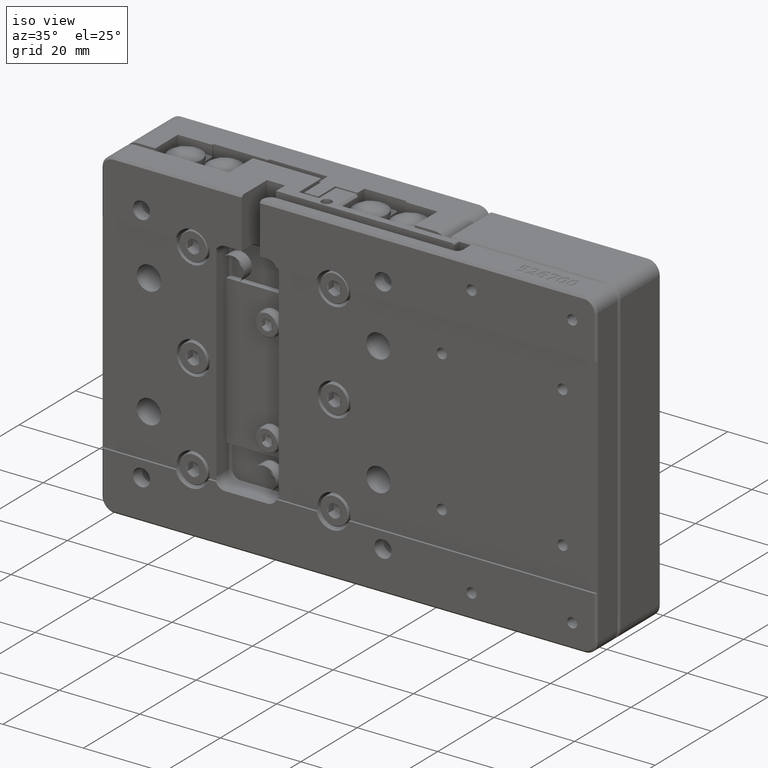
[diagram: clean part render]
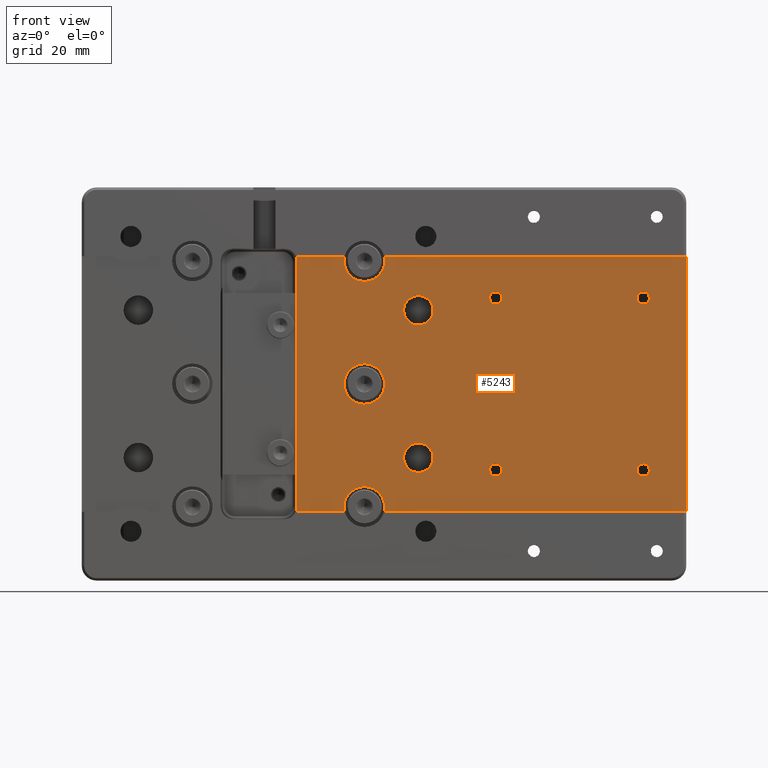
[diagram: tour spotlight — one face highlighted and labeled with its STEP entity id]
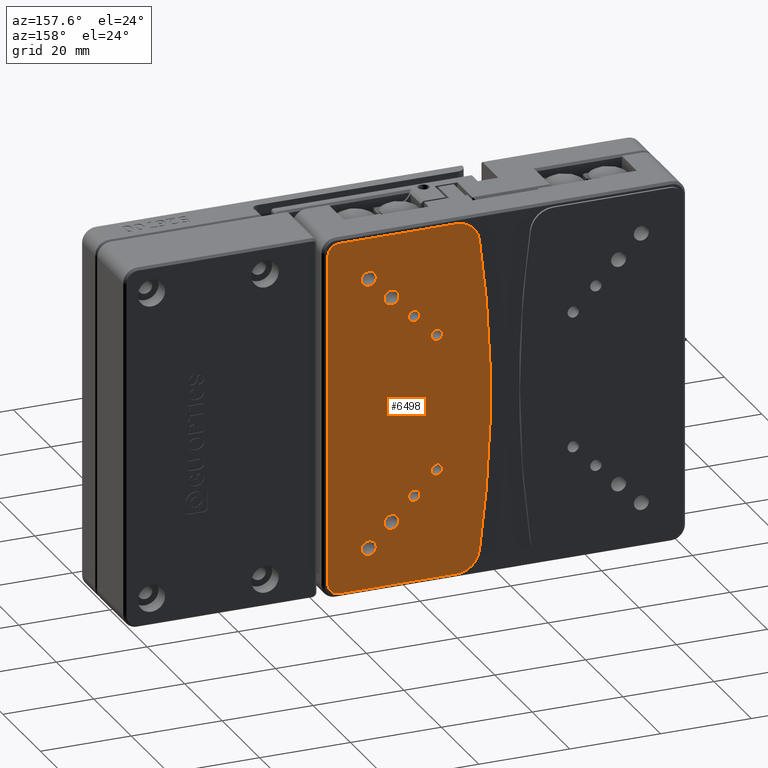
[diagram: tour spotlight — one face highlighted and labeled with its STEP entity id]
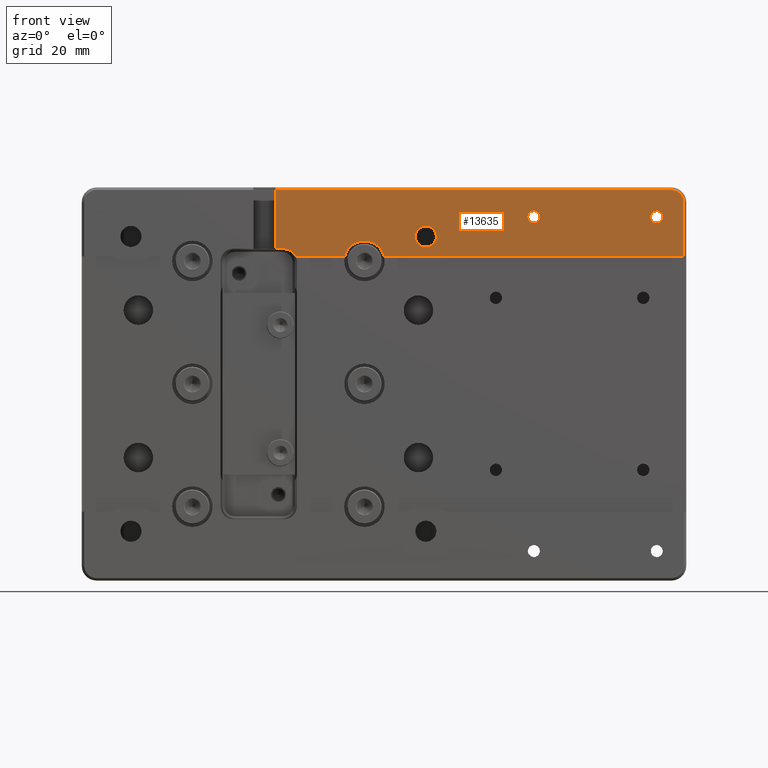
[diagram: tour spotlight — one face highlighted and labeled with its STEP entity id]
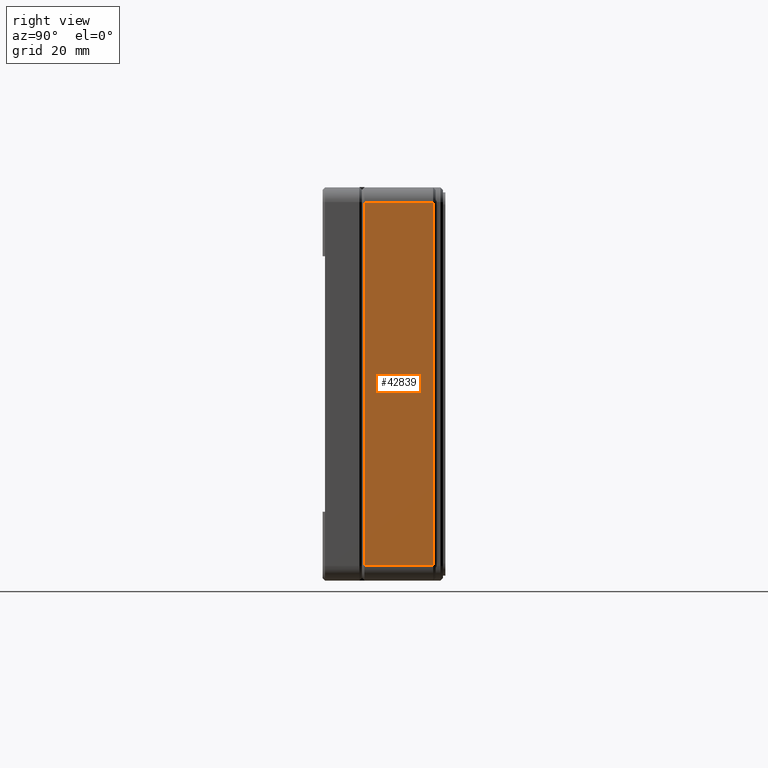
[diagram: tour spotlight — one face highlighted and labeled with its STEP entity id]
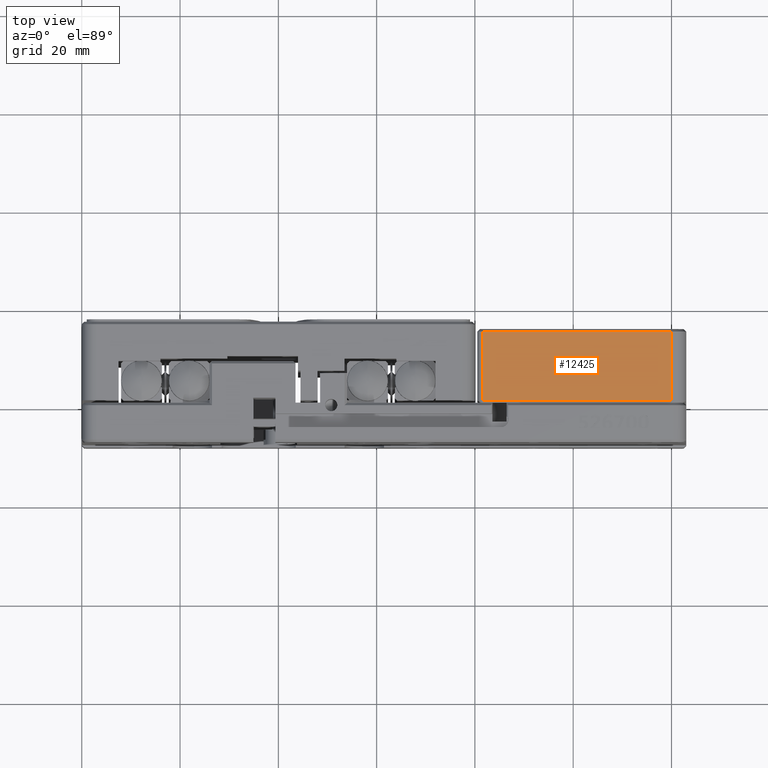
[diagram: tour spotlight — one face highlighted and labeled with its STEP entity id]
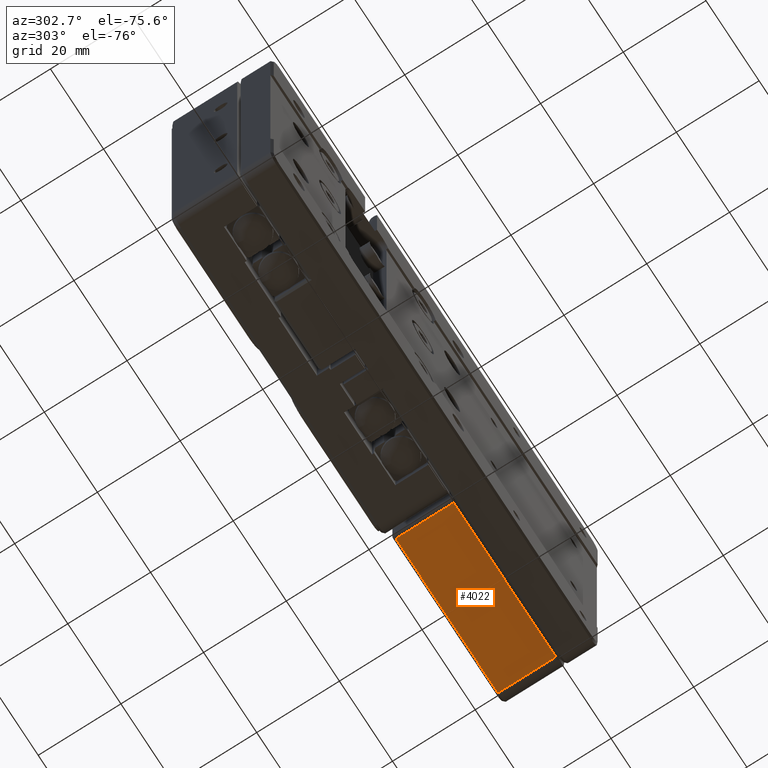
[diagram: tour spotlight — one face highlighted and labeled with its STEP entity id]
A machine part: a face-by-face anatomy tour. The part has 1853 B-rep faces; the first image is the clean iso view, then the 6 largest visible faces are spotlighted one at a time (largest first), each with its STEP entity span.

Face 1 — front view, entity #5243. In plain terms, the highlighted planar face has unit normal (0, -1, 0).
Definition (entity closure, byte-faithful):
#41 = VERTEX_POINT ( 'NONE', #8636 ) ;
#327 = EDGE_CURVE ( 'NONE', #62419, #60250, #20413, .T. ) ;
#497 = ORIENTED_EDGE ( 'NONE', *, *, #16865, .T. ) ;
#921 = VERTEX_POINT ( 'NONE', #6648 ) ;
#961 = CIRCLE ( 'NONE', #49555, 4.125000000000003600 ) ;
#1050 = CIRCLE ( 'NONE', #1279, 1.250000000000001100 ) ;
#1279 = AXIS2_PLACEMENT_3D ( 'NONE', #64958, #34749, #4560 ) ;
#1398 = EDGE_CURVE ( 'NONE', #30802, #30226, #41581, .T. ) ;
#1492 = DIRECTION ( 'NONE',  ( 0.0000000000000000000, 0.0000000000000000000, 1.000000000000000000 ) ) ;
#1536 = EDGE_CURVE ( 'NONE', #40403, #65016, #36853, .T. ) ;
#1770 = CARTESIAN_POINT ( 'NONE',  ( 28.49999999999999600, -7.500000000000000000, -15.00000000000000000 ) ) ;
#1894 = VERTEX_POINT ( 'NONE', #53419 ) ;
#2154 = VERTEX_POINT ( 'NONE', #51379 ) ;
#2250 = VECTOR ( 'NONE', #57064, 1000.000000000000000 ) ;
#2258 = ORIENTED_EDGE ( 'NONE', *, *, #40413, .T. ) ;
#2282 = DIRECTION ( 'NONE',  ( 0.0000000000000000000, 0.0000000000000000000, 1.000000000000000000 ) ) ;
#2751 = EDGE_CURVE ( 'NONE', #2154, #43094, #37635, .T. ) ;
#3094 = CARTESIAN_POINT ( 'NONE',  ( 17.50000000000000400, -7.500000000000000000, -25.00000000000000000 ) ) ;
#3135 = CARTESIAN_POINT ( 'NONE',  ( 74.25000000000000000, -7.500000000000000000, 16.25000000000000400 ) ) ;
#3430 = CARTESIAN_POINT ( 'NONE',  ( 28.49999999999999600, -7.500000000000000000, 12.00000000000000400 ) ) ;
#3520 = AXIS2_PLACEMENT_3D ( 'NONE', #62727, #32485, #2282 ) ;
#3634 = ORIENTED_EDGE ( 'NONE', *, *, #27337, .T. ) ;
#4100 = VERTEX_POINT ( 'NONE', #38501 ) ;
#4560 = DIRECTION ( 'NONE',  ( 0.0000000000000000000, 0.0000000000000000000, 1.000000000000000000 ) ) ;
#4718 = ORIENTED_EDGE ( 'NONE', *, *, #49585, .T. ) ;
#4836 = CIRCLE ( 'NONE', #55252, 1.250000000000001100 ) ;
#4876 = AXIS2_PLACEMENT_3D ( 'NONE', #17133, #52330, #22188 ) ;
#5180 = EDGE_LOOP ( 'NONE', ( #55254, #11738 ) ) ;
#5223 = CARTESIAN_POINT ( 'NONE',  ( 28.49999999999999600, -7.500000000000000000, -17.99999999999999600 ) ) ;
#5243 = ADVANCED_FACE ( 'NONE', ( #44448, #54640, #29445, #42869, #16074, #41271, #27879, #14486 ), #45598, .T. ) ;
#5276 = CARTESIAN_POINT ( 'NONE',  ( -42.46000000000001500, -7.500000000000000000, 27.04000000000000300 ) ) ;
#5679 = ORIENTED_EDGE ( 'NONE', *, *, #38356, .T. ) ;
#5714 = VECTOR ( 'NONE', #41477, 1000.000000000000000 ) ;
#5724 = CARTESIAN_POINT ( 'NONE',  ( 44.25000000000000000, -7.500000000000000000, -17.50000000000000400 ) ) ;
#5899 = ORIENTED_EDGE ( 'NONE', *, *, #17806, .T. ) ;
#6648 = CARTESIAN_POINT ( 'NONE',  ( 83.00000000000044100, -7.500000000000211400, -25.99999999999977300 ) ) ;
#6840 = CARTESIAN_POINT ( 'NONE',  ( -42.46000000000001500, -7.500000000000000000, -25.99999999999969800 ) ) ;
#6899 = DIRECTION ( 'NONE',  ( 0.0000000000000000000, 0.0000000000000000000, 1.000000000000000000 ) ) ;
#6964 = EDGE_CURVE ( 'NONE', #65048, #65270, #47400, .T. ) ;
#7366 = EDGE_CURVE ( 'NONE', #65016, #40403, #52071, .T. ) ;
#7445 = CARTESIAN_POINT ( 'NONE',  ( 3.541287847478008700, -7.500000000000000000, 25.99999999999985100 ) ) ;
#7497 = CIRCLE ( 'NONE', #25016, 1.250000000000001100 ) ;
#8211 = DIRECTION ( 'NONE',  ( 0.0000000000000000000, 0.0000000000000000000, -1.000000000000000000 ) ) ;
#8384 = CIRCLE ( 'NONE', #22043, 2.999999999999995600 ) ;
#8605 = CARTESIAN_POINT ( 'NONE',  ( 44.25000000000000000, -7.500000000000000000, 17.50000000000000400 ) ) ;
#8636 = CARTESIAN_POINT ( 'NONE',  ( 83.00000000000166300, -7.500000000001668900, 26.00000000000001100 ) ) ;
#9182 = CARTESIAN_POINT ( 'NONE',  ( 44.25000000000000000, -7.500000000000000000, 18.75000000000000700 ) ) ;
#9375 = ORIENTED_EDGE ( 'NONE', *, *, #42572, .T. ) ;
#10143 = DIRECTION ( 'NONE',  ( 0.0000000000000000000, -1.000000000000000000, 0.0000000000000000000 ) ) ;
#10337 = DIRECTION ( 'NONE',  ( -0.0000000000000000000, 0.0000000000000000000, 1.000000000000000000 ) ) ;
#10826 = DIRECTION ( 'NONE',  ( 0.0000000000000000000, 0.0000000000000000000, 1.000000000000000000 ) ) ;
#10926 = AXIS2_PLACEMENT_3D ( 'NONE', #5276, #10143, #50633 ) ;
#11192 = VERTEX_POINT ( 'NONE', #35366 ) ;
#11299 = CARTESIAN_POINT ( 'NONE',  ( 3.750000000000017300, -7.500000000000000000, 27.04000000000000300 ) ) ;
#11517 = CIRCLE ( 'NONE', #25833, 2.999999999999995600 ) ;
#11558 = LINE ( 'NONE', #50152, #51721 ) ;
#11738 = ORIENTED_EDGE ( 'NONE', *, *, #327, .T. ) ;
#11759 = EDGE_LOOP ( 'NONE', ( #62111, #63106, #497, #35026, #9375, #15157, #56418, #54583, #13465, #2258, #46025, #31584 ) ) ;
#12179 = DIRECTION ( 'NONE',  ( 1.000000000000000000, 0.0000000000000000000, 0.0000000000000000000 ) ) ;
#12183 = DIRECTION ( 'NONE',  ( 0.0000000000000000000, 1.000000000000000000, 0.0000000000000000000 ) ) ;
#13153 = ORIENTED_EDGE ( 'NONE', *, *, #7366, .T. ) ;
#13378 = CARTESIAN_POINT ( 'NONE',  ( 74.25000000000000000, -7.500000000000000000, -16.25000000000000400 ) ) ;
#13465 = ORIENTED_EDGE ( 'NONE', *, *, #2751, .T. ) ;
#13672 = DIRECTION ( 'NONE',  ( 0.0000000000000000000, 0.0000000000000000000, 1.000000000000000000 ) ) ;
#14157 = CARTESIAN_POINT ( 'NONE',  ( 74.25000000000000000, -7.500000000000000000, 17.50000000000000400 ) ) ;
#14486 = FACE_BOUND ( 'NONE', #5180, .T. ) ;
#14511 = EDGE_LOOP ( 'NONE', ( #14887, #23913 ) ) ;
#14887 = ORIENTED_EDGE ( 'NONE', *, *, #23023, .T. ) ;
#14953 = DIRECTION ( 'NONE',  ( -1.000000000000000000, -0.0000000000000000000, -0.0000000000000000000 ) ) ;
#15157 = ORIENTED_EDGE ( 'NONE', *, *, #51113, .T. ) ;
#16074 = FACE_BOUND ( 'NONE', #43204, .T. ) ;
#16704 = AXIS2_PLACEMENT_3D ( 'NONE', #29216, #64513, #34307 ) ;
#16823 = EDGE_CURVE ( 'NONE', #4100, #34347, #19152, .T. ) ;
#16865 = EDGE_CURVE ( 'NONE', #1894, #51011, #17580, .T. ) ;
#17133 = CARTESIAN_POINT ( 'NONE',  ( 74.25000000000000000, -7.500000000000000000, -17.50000000000000400 ) ) ;
#17580 = LINE ( 'NONE', #31975, #42797 ) ;
#17806 = EDGE_CURVE ( 'NONE', #23369, #52086, #4836, .T. ) ;
#17868 = CARTESIAN_POINT ( 'NONE',  ( 28.49999999999999600, -7.500000000000000000, -12.00000000000000400 ) ) ;
#18038 = CARTESIAN_POINT ( 'NONE',  ( -42.46000000000001500, -7.500000000000000000, 25.99999999999969800 ) ) ;
#19152 = LINE ( 'NONE', #11299, #5714 ) ;
#19244 = DIRECTION ( 'NONE',  ( 0.0000000000000000000, 0.0000000000000000000, 1.000000000000000000 ) ) ;
#19530 = EDGE_LOOP ( 'NONE', ( #5679, #4718 ) ) ;
#19589 = CARTESIAN_POINT ( 'NONE',  ( 17.50000000000000400, -7.500000000000000000, 20.87499999999999600 ) ) ;
#19756 = DIRECTION ( 'NONE',  ( -0.0000000000000000000, 1.000000000000000000, -0.0000000000000000000 ) ) ;
#20413 = CIRCLE ( 'NONE', #27462, 1.250000000000001100 ) ;
#20659 = CARTESIAN_POINT ( 'NONE',  ( 28.49999999999999600, -7.500000000000000000, -15.00000000000000000 ) ) ;
#21301 = AXIS2_PLACEMENT_3D ( 'NONE', #26217, #61470, #31242 ) ;
#21604 = DIRECTION ( 'NONE',  ( -0.0000000000000000000, 1.000000000000000000, -0.0000000000000000000 ) ) ;
#21800 = DIRECTION ( 'NONE',  ( 0.0000000000000000000, 1.000000000000000000, 3.469446951953610700E-016 ) ) ;
#21961 = VECTOR ( 'NONE', #10337, 1000.000000000000000 ) ;
#22043 = AXIS2_PLACEMENT_3D ( 'NONE', #20659, #55882, #25739 ) ;
#22188 = DIRECTION ( 'NONE',  ( 0.0000000000000000000, 0.0000000000000000000, 1.000000000000000000 ) ) ;
#23023 = EDGE_CURVE ( 'NONE', #45306, #26887, #50863, .T. ) ;
#23369 = VERTEX_POINT ( 'NONE', #36823 ) ;
#23913 = ORIENTED_EDGE ( 'NONE', *, *, #28785, .T. ) ;
#24693 = EDGE_LOOP ( 'NONE', ( #34514, #13153 ) ) ;
#24978 = CARTESIAN_POINT ( 'NONE',  ( 17.50000000000000400, -7.500000000000000000, -4.125000000000005300 ) ) ;
#25016 = AXIS2_PLACEMENT_3D ( 'NONE', #5724, #40975, #10826 ) ;
#25716 = EDGE_CURVE ( 'NONE', #30226, #4100, #48574, .T. ) ;
#25739 = DIRECTION ( 'NONE',  ( 0.0000000000000000000, 0.0000000000000000000, 1.000000000000000000 ) ) ;
#25833 = AXIS2_PLACEMENT_3D ( 'NONE', #28369, #63658, #33446 ) ;
#26217 = CARTESIAN_POINT ( 'NONE',  ( 1.250000000000000000, -7.500000000000000000, -25.00000000000000000 ) ) ;
#26618 = CARTESIAN_POINT ( 'NONE',  ( 17.50000000000000400, -7.500000000000000000, 0.0000000000000000000 ) ) ;
#26799 = ORIENTED_EDGE ( 'NONE', *, *, #64222, .T. ) ;
#26887 = VERTEX_POINT ( 'NONE', #3135 ) ;
#27337 = EDGE_CURVE ( 'NONE', #55637, #60489, #11517, .T. ) ;
#27462 = AXIS2_PLACEMENT_3D ( 'NONE', #61945, #31707, #1492 ) ;
#27879 = FACE_BOUND ( 'NONE', #14511, .T. ) ;
#27906 = EDGE_LOOP ( 'NONE', ( #51515, #40849 ) ) ;
#27990 = AXIS2_PLACEMENT_3D ( 'NONE', #30215, #65498, #35296 ) ;
#28142 = DIRECTION ( 'NONE',  ( -1.000000000000000000, -0.0000000000000000000, -0.0000000000000000000 ) ) ;
#28369 = CARTESIAN_POINT ( 'NONE',  ( 28.49999999999999600, -7.500000000000000000, 15.00000000000000000 ) ) ;
#28785 = EDGE_CURVE ( 'NONE', #26887, #45306, #35755, .T. ) ;
#29216 = CARTESIAN_POINT ( 'NONE',  ( 28.49999999999999600, -7.500000000000000000, 15.00000000000000000 ) ) ;
#29445 = FACE_BOUND ( 'NONE', #63767, .T. ) ;
#29641 = DIRECTION ( 'NONE',  ( -0.0000000000000000000, 1.000000000000000000, -0.0000000000000000000 ) ) ;
#30215 = CARTESIAN_POINT ( 'NONE',  ( 17.50000000000000400, -7.500000000000000000, 25.00000000000000000 ) ) ;
#30226 = VERTEX_POINT ( 'NONE', #7445 ) ;
#30802 = VERTEX_POINT ( 'NONE', #38660 ) ;
#30958 = VERTEX_POINT ( 'NONE', #49814 ) ;
#31242 = DIRECTION ( 'NONE',  ( 0.0000000000000000000, 0.0000000000000000000, 1.000000000000000000 ) ) ;
#31555 = CARTESIAN_POINT ( 'NONE',  ( 74.25000000000000000, -7.500000000000000000, -18.75000000000000700 ) ) ;
#31584 = ORIENTED_EDGE ( 'NONE', *, *, #25716, .T. ) ;
#31630 = ORIENTED_EDGE ( 'NONE', *, *, #60448, .T. ) ;
#31644 = DIRECTION ( 'NONE',  ( 0.0000000000000000000, 0.0000000000000000000, -1.000000000000000000 ) ) ;
#31707 = DIRECTION ( 'NONE',  ( 0.0000000000000000000, 1.000000000000000000, 3.469446951953611200E-016 ) ) ;
#31975 = CARTESIAN_POINT ( 'NONE',  ( -42.46000000000001500, -7.500000000000000000, -25.99999999999998200 ) ) ;
#32218 = CIRCLE ( 'NONE', #4876, 1.250000000000001100 ) ;
#32485 = DIRECTION ( 'NONE',  ( 0.0000000000000000000, 1.000000000000000000, 3.469446951953611200E-016 ) ) ;
#32579 = CARTESIAN_POINT ( 'NONE',  ( 17.50000000000000400, -7.500000000000000000, 4.125000000000005300 ) ) ;
#33281 = EDGE_CURVE ( 'NONE', #921, #41, #58987, .T. ) ;
#33446 = DIRECTION ( 'NONE',  ( 0.0000000000000000000, 0.0000000000000000000, 1.000000000000000000 ) ) ;
#33578 = CARTESIAN_POINT ( 'NONE',  ( 74.25000000000000000, -7.500000000000000000, 18.75000000000000700 ) ) ;
#34307 = DIRECTION ( 'NONE',  ( 0.0000000000000000000, 0.0000000000000000000, 1.000000000000000000 ) ) ;
#34347 = VERTEX_POINT ( 'NONE', #49368 ) ;
#34514 = ORIENTED_EDGE ( 'NONE', *, *, #1536, .T. ) ;
#34749 = DIRECTION ( 'NONE',  ( 0.0000000000000000000, 1.000000000000000000, 3.469446951953610700E-016 ) ) ;
#35026 = ORIENTED_EDGE ( 'NONE', *, *, #63084, .T. ) ;
#35296 = DIRECTION ( 'NONE',  ( 0.0000000000000000000, 0.0000000000000000000, -1.000000000000000000 ) ) ;
#35366 = CARTESIAN_POINT ( 'NONE',  ( 44.25000000000000000, -7.500000000000000000, -16.25000000000000400 ) ) ;
#35755 = CIRCLE ( 'NONE', #3520, 1.250000000000001100 ) ;
#35931 = AXIS2_PLACEMENT_3D ( 'NONE', #59853, #29641, #64916 ) ;
#36726 = AXIS2_PLACEMENT_3D ( 'NONE', #42359, #12183, #47397 ) ;
#36823 = CARTESIAN_POINT ( 'NONE',  ( 44.25000000000000000, -7.500000000000000000, 16.25000000000000400 ) ) ;
#36853 = CIRCLE ( 'NONE', #35931, 4.125000000000005300 ) ;
#37100 = DIRECTION ( 'NONE',  ( 0.0000000000000000000, 1.000000000000000000, -1.445602896647341400E-016 ) ) ;
#37635 = CIRCLE ( 'NONE', #51150, 4.125000000000003600 ) ;
#38356 = EDGE_CURVE ( 'NONE', #11192, #30958, #47011, .T. ) ;
#38396 = DIRECTION ( 'NONE',  ( -0.0000000000000000000, 1.000000000000000000, -0.0000000000000000000 ) ) ;
#38501 = CARTESIAN_POINT ( 'NONE',  ( 3.750000000000008400, -7.500000000000000000, 25.00000000000000000 ) ) ;
#38660 = CARTESIAN_POINT ( 'NONE',  ( 13.49804735160327800, -7.500000000000000000, 25.99999999999985100 ) ) ;
#40403 = VERTEX_POINT ( 'NONE', #24978 ) ;
#40413 = EDGE_CURVE ( 'NONE', #43094, #30802, #45305, .T. ) ;
#40529 = AXIS2_PLACEMENT_3D ( 'NONE', #1770, #37100, #6899 ) ;
#40849 = ORIENTED_EDGE ( 'NONE', *, *, #48687, .T. ) ;
#40900 = LINE ( 'NONE', #6840, #2250 ) ;
#40975 = DIRECTION ( 'NONE',  ( 0.0000000000000000000, 1.000000000000000000, 3.469446951953610700E-016 ) ) ;
#41271 = FACE_BOUND ( 'NONE', #19530, .T. ) ;
#41477 = DIRECTION ( 'NONE',  ( 0.0000000000000000000, -0.0000000000000000000, -1.000000000000000000 ) ) ;
#41581 = LINE ( 'NONE', #18038, #56559 ) ;
#42359 = CARTESIAN_POINT ( 'NONE',  ( 1.250000000000000000, -7.500000000000000000, 25.00000000000000000 ) ) ;
#42572 = EDGE_CURVE ( 'NONE', #42905, #43574, #961, .T. ) ;
#42676 = AXIS2_PLACEMENT_3D ( 'NONE', #26618, #61884, #31644 ) ;
#42797 = VECTOR ( 'NONE', #12179, 1000.000000000000000 ) ;
#42869 = FACE_BOUND ( 'NONE', #27906, .T. ) ;
#42905 = VERTEX_POINT ( 'NONE', #62591 ) ;
#43094 = VERTEX_POINT ( 'NONE', #19589 ) ;
#43204 = EDGE_LOOP ( 'NONE', ( #31630, #5899 ) ) ;
#43531 = AXIS2_PLACEMENT_3D ( 'NONE', #51928, #21800, #57008 ) ;
#43574 = VERTEX_POINT ( 'NONE', #58507 ) ;
#43853 = DIRECTION ( 'NONE',  ( 0.0000000000000000000, 1.000000000000000000, 3.469446951953610700E-016 ) ) ;
#44448 = FACE_OUTER_BOUND ( 'NONE', #11759, .T. ) ;
#44860 = CIRCLE ( 'NONE', #16704, 2.999999999999995600 ) ;
#45305 = CIRCLE ( 'NONE', #27990, 4.125000000000003600 ) ;
#45306 = VERTEX_POINT ( 'NONE', #33578 ) ;
#45577 = CARTESIAN_POINT ( 'NONE',  ( 83.00000000000044100, -7.500000000000000000, 27.04000000000000300 ) ) ;
#45598 = PLANE ( 'NONE',  #10926 ) ;
#46025 = ORIENTED_EDGE ( 'NONE', *, *, #1398, .T. ) ;
#46485 = CARTESIAN_POINT ( 'NONE',  ( 13.49804735160436500, -7.500000000000000000, -25.99999999999957400 ) ) ;
#47011 = CIRCLE ( 'NONE', #43531, 1.250000000000001100 ) ;
#47397 = DIRECTION ( 'NONE',  ( 0.0000000000000000000, 0.0000000000000000000, 1.000000000000000000 ) ) ;
#47400 = CIRCLE ( 'NONE', #40529, 2.999999999999995600 ) ;
#48574 = CIRCLE ( 'NONE', #36726, 2.499999999999998700 ) ;
#48594 = EDGE_CURVE ( 'NONE', #41, #2154, #11558, .T. ) ;
#48687 = EDGE_CURVE ( 'NONE', #65270, #65048, #8384, .T. ) ;
#49364 = DIRECTION ( 'NONE',  ( 0.0000000000000000000, 1.000000000000000000, 3.469446951953611200E-016 ) ) ;
#49368 = CARTESIAN_POINT ( 'NONE',  ( 3.750000000000008400, -7.500000000000000000, -25.00000000000000000 ) ) ;
#49555 = AXIS2_PLACEMENT_3D ( 'NONE', #3094, #38396, #8211 ) ;
#49585 = EDGE_CURVE ( 'NONE', #30958, #11192, #7497, .T. ) ;
#49814 = CARTESIAN_POINT ( 'NONE',  ( 44.25000000000000000, -7.500000000000000000, -18.75000000000000700 ) ) ;
#49873 = CARTESIAN_POINT ( 'NONE',  ( 17.50000000000000400, -7.500000000000000000, -25.00000000000000000 ) ) ;
#50152 = CARTESIAN_POINT ( 'NONE',  ( -42.46000000000001500, -7.500000000000000000, 26.00000000000000400 ) ) ;
#50633 = DIRECTION ( 'NONE',  ( 0.0000000000000000000, -0.0000000000000000000, -1.000000000000000000 ) ) ;
#50863 = CIRCLE ( 'NONE', #56003, 1.250000000000001100 ) ;
#51011 = VERTEX_POINT ( 'NONE', #46485 ) ;
#51113 = EDGE_CURVE ( 'NONE', #43574, #921, #40900, .T. ) ;
#51150 = AXIS2_PLACEMENT_3D ( 'NONE', #51766, #21604, #56846 ) ;
#51379 = CARTESIAN_POINT ( 'NONE',  ( 21.50195264839564400, -7.500000000000000000, 25.99999999999958400 ) ) ;
#51515 = ORIENTED_EDGE ( 'NONE', *, *, #6964, .T. ) ;
#51721 = VECTOR ( 'NONE', #14953, 1000.000000000000000 ) ;
#51766 = CARTESIAN_POINT ( 'NONE',  ( 17.50000000000000400, -7.500000000000000000, 25.00000000000000000 ) ) ;
#51928 = CARTESIAN_POINT ( 'NONE',  ( 44.25000000000000000, -7.500000000000000000, -17.50000000000000400 ) ) ;
#52071 = CIRCLE ( 'NONE', #42676, 4.125000000000005300 ) ;
#52086 = VERTEX_POINT ( 'NONE', #9182 ) ;
#52330 = DIRECTION ( 'NONE',  ( 0.0000000000000000000, 1.000000000000000000, 3.469446951953611200E-016 ) ) ;
#52753 = CIRCLE ( 'NONE', #21301, 2.499999999999998700 ) ;
#53419 = CARTESIAN_POINT ( 'NONE',  ( 3.541287847477953700, -7.500000000000000000, -25.99999999999999600 ) ) ;
#54583 = ORIENTED_EDGE ( 'NONE', *, *, #48594, .T. ) ;
#54640 = FACE_BOUND ( 'NONE', #24693, .T. ) ;
#54955 = DIRECTION ( 'NONE',  ( 0.0000000000000000000, 0.0000000000000000000, -1.000000000000000000 ) ) ;
#55252 = AXIS2_PLACEMENT_3D ( 'NONE', #8605, #43853, #13672 ) ;
#55254 = ORIENTED_EDGE ( 'NONE', *, *, #65447, .T. ) ;
#55637 = VERTEX_POINT ( 'NONE', #3430 ) ;
#55882 = DIRECTION ( 'NONE',  ( 0.0000000000000000000, 1.000000000000000000, -1.445602896647341400E-016 ) ) ;
#56003 = AXIS2_PLACEMENT_3D ( 'NONE', #14157, #49364, #19244 ) ;
#56418 = ORIENTED_EDGE ( 'NONE', *, *, #33281, .T. ) ;
#56559 = VECTOR ( 'NONE', #28142, 1000.000000000000000 ) ;
#56846 = DIRECTION ( 'NONE',  ( -8.410780489584511800E-016, 0.0000000000000000000, -1.000000000000000000 ) ) ;
#57008 = DIRECTION ( 'NONE',  ( 0.0000000000000000000, 0.0000000000000000000, 1.000000000000000000 ) ) ;
#57064 = DIRECTION ( 'NONE',  ( 1.000000000000000000, 0.0000000000000000000, 0.0000000000000000000 ) ) ;
#58507 = CARTESIAN_POINT ( 'NONE',  ( 21.50195264839673100, -7.500000000000000000, -25.99999999999985100 ) ) ;
#58987 = LINE ( 'NONE', #45577, #21961 ) ;
#59853 = CARTESIAN_POINT ( 'NONE',  ( 17.50000000000000400, -7.500000000000000000, 0.0000000000000000000 ) ) ;
#60250 = VERTEX_POINT ( 'NONE', #13378 ) ;
#60315 = CARTESIAN_POINT ( 'NONE',  ( 28.49999999999999600, -7.500000000000000000, 17.99999999999999600 ) ) ;
#60448 = EDGE_CURVE ( 'NONE', #52086, #23369, #1050, .T. ) ;
#60489 = VERTEX_POINT ( 'NONE', #60315 ) ;
#61470 = DIRECTION ( 'NONE',  ( 0.0000000000000000000, 1.000000000000000000, 0.0000000000000000000 ) ) ;
#61884 = DIRECTION ( 'NONE',  ( -0.0000000000000000000, 1.000000000000000000, -0.0000000000000000000 ) ) ;
#61945 = CARTESIAN_POINT ( 'NONE',  ( 74.25000000000000000, -7.500000000000000000, -17.50000000000000400 ) ) ;
#62111 = ORIENTED_EDGE ( 'NONE', *, *, #16823, .T. ) ;
#62419 = VERTEX_POINT ( 'NONE', #31555 ) ;
#62591 = CARTESIAN_POINT ( 'NONE',  ( 17.50000000000000400, -7.500000000000000000, -20.87499999999999600 ) ) ;
#62727 = CARTESIAN_POINT ( 'NONE',  ( 74.25000000000000000, -7.500000000000000000, 17.50000000000000400 ) ) ;
#63084 = EDGE_CURVE ( 'NONE', #51011, #42905, #65480, .T. ) ;
#63106 = ORIENTED_EDGE ( 'NONE', *, *, #64008, .T. ) ;
#63508 = AXIS2_PLACEMENT_3D ( 'NONE', #49873, #19756, #54955 ) ;
#63658 = DIRECTION ( 'NONE',  ( 0.0000000000000000000, 1.000000000000000000, -1.445602896647341400E-016 ) ) ;
#63767 = EDGE_LOOP ( 'NONE', ( #26799, #3634 ) ) ;
#64008 = EDGE_CURVE ( 'NONE', #34347, #1894, #52753, .T. ) ;
#64222 = EDGE_CURVE ( 'NONE', #60489, #55637, #44860, .T. ) ;
#64513 = DIRECTION ( 'NONE',  ( 0.0000000000000000000, 1.000000000000000000, -1.445602896647341400E-016 ) ) ;
#64916 = DIRECTION ( 'NONE',  ( 0.0000000000000000000, 0.0000000000000000000, -1.000000000000000000 ) ) ;
#64958 = CARTESIAN_POINT ( 'NONE',  ( 44.25000000000000000, -7.500000000000000000, 17.50000000000000400 ) ) ;
#65016 = VERTEX_POINT ( 'NONE', #32579 ) ;
#65048 = VERTEX_POINT ( 'NONE', #17868 ) ;
#65270 = VERTEX_POINT ( 'NONE', #5223 ) ;
#65447 = EDGE_CURVE ( 'NONE', #60250, #62419, #32218, .T. ) ;
#65480 = CIRCLE ( 'NONE', #63508, 4.125000000000003600 ) ;
#65498 = DIRECTION ( 'NONE',  ( -0.0000000000000000000, 1.000000000000000000, -0.0000000000000000000 ) ) ;

Face 2 — auxiliary view, entity #6498. In plain terms, the highlighted planar face has unit normal (0, 1, -0).
Definition (entity closure, byte-faithful):
#324 = ORIENTED_EDGE ( 'NONE', *, *, #784, .T. ) ;
#470 = ORIENTED_EDGE ( 'NONE', *, *, #9253, .T. ) ;
#784 = EDGE_CURVE ( 'NONE', #22221, #30694, #41639, .T. ) ;
#898 = FACE_BOUND ( 'NONE', #29593, .T. ) ;
#1157 = CARTESIAN_POINT ( 'NONE',  ( 15.00000000000000000, 17.00000000000000000, 15.00000000000000000 ) ) ;
#1159 = CARTESIAN_POINT ( 'NONE',  ( 30.00000000000000000, 17.00000000000000000, 28.35000000000000100 ) ) ;
#1202 = DIRECTION ( 'NONE',  ( 0.0000000000000000000, 1.000000000000000000, -0.0000000000000000000 ) ) ;
#1220 = DIRECTION ( 'NONE',  ( 0.0000000000000000000, 0.0000000000000000000, -1.000000000000000000 ) ) ;
#1345 = CARTESIAN_POINT ( 'NONE',  ( 5.669033727399019900, 17.00000000000000000, -34.69387755102074800 ) ) ;
#1798 = CARTESIAN_POINT ( 'NONE',  ( 20.00000000000000000, 17.00000000000000000, 21.25000000000000000 ) ) ;
#2455 = CARTESIAN_POINT ( 'NONE',  ( 25.00000000000000000, 17.00000000000000000, 25.00000000000000000 ) ) ;
#2621 = DIRECTION ( 'NONE',  ( -0.0000000000000000000, -1.000000000000000000, -0.0000000000000000000 ) ) ;
#2777 = EDGE_LOOP ( 'NONE', ( #50796, #48199 ) ) ;
#3072 = CIRCLE ( 'NONE', #9865, 1.649999999999998600 ) ;
#3086 = DIRECTION ( 'NONE',  ( 0.0000000000000000000, 0.0000000000000000000, -1.000000000000000000 ) ) ;
#3344 = EDGE_CURVE ( 'NONE', #21859, #22221, #17859, .T. ) ;
#3391 = AXIS2_PLACEMENT_3D ( 'NONE', #19047, #54250, #24092 ) ;
#3974 = DIRECTION ( 'NONE',  ( 0.0000000000000000000, 0.0000000000000000000, 1.000000000000000000 ) ) ;
#3999 = AXIS2_PLACEMENT_3D ( 'NONE', #4071, #39352, #9174 ) ;
#4000 = DIRECTION ( 'NONE',  ( 0.0000000000000000000, 0.0000000000000000000, 1.000000000000000000 ) ) ;
#4071 = CARTESIAN_POINT ( 'NONE',  ( 25.00000000000000000, 17.00000000000000000, -25.00000000000000000 ) ) ;
#4132 = CARTESIAN_POINT ( 'NONE',  ( 39.00000000000000000, 17.00000000000000000, 36.50000000000000000 ) ) ;
#4579 = CARTESIAN_POINT ( 'NONE',  ( 15.00000000000000000, 17.00000000000000000, -15.00000000000000000 ) ) ;
#6270 = DIRECTION ( 'NONE',  ( 0.0000000000000000000, 0.0000000000000000000, 1.000000000000000000 ) ) ;
#6324 = CIRCLE ( 'NONE', #49640, 1.250000000000001100 ) ;
#6498 = ADVANCED_FACE ( 'NONE', ( #57714, #56117, #30893, #54523, #41151, #29316, #27756, #14358, #898 ), #21303, .T. ) ;
#6595 = VERTEX_POINT ( 'NONE', #17135 ) ;
#6750 = CIRCLE ( 'NONE', #13618, 1.250000000000001100 ) ;
#6915 = AXIS2_PLACEMENT_3D ( 'NONE', #61663, #31427, #1220 ) ;
#7581 = DIRECTION ( 'NONE',  ( 0.0000000000000000000, 0.0000000000000000000, 1.000000000000000000 ) ) ;
#8029 = AXIS2_PLACEMENT_3D ( 'NONE', #31414, #1202, #36496 ) ;
#8058 = AXIS2_PLACEMENT_3D ( 'NONE', #40158, #9997, #45216 ) ;
#9145 = CIRCLE ( 'NONE', #39269, 1.250000000000001100 ) ;
#9174 = DIRECTION ( 'NONE',  ( 0.0000000000000000000, 0.0000000000000000000, 1.000000000000000000 ) ) ;
#9253 = EDGE_CURVE ( 'NONE', #13471, #6595, #6750, .T. ) ;
#9371 = AXIS2_PLACEMENT_3D ( 'NONE', #2455, #37765, #7581 ) ;
#9482 = CARTESIAN_POINT ( 'NONE',  ( 40.56000000000000200, 17.00000000000000000, 39.00000000000000000 ) ) ;
#9672 = DIRECTION ( 'NONE',  ( 0.0000000000000000000, 0.0000000000000000000, 1.000000000000000000 ) ) ;
#9795 = AXIS2_PLACEMENT_3D ( 'NONE', #63522, #33316, #3086 ) ;
#9865 = AXIS2_PLACEMENT_3D ( 'NONE', #14374, #49568, #19467 ) ;
#9997 = DIRECTION ( 'NONE',  ( 0.0000000000000000000, 1.000000000000000000, 0.0000000000000000000 ) ) ;
#10087 = ORIENTED_EDGE ( 'NONE', *, *, #58414, .T. ) ;
#10814 = EDGE_CURVE ( 'NONE', #41670, #25220, #25542, .T. ) ;
#11402 = CARTESIAN_POINT ( 'NONE',  ( 20.00000000000000000, 17.00000000000000000, -21.25000000000000000 ) ) ;
#11710 = CARTESIAN_POINT ( 'NONE',  ( 30.00000000000000000, 17.00000000000000000, -31.64999999999999900 ) ) ;
#12828 = CIRCLE ( 'NONE', #38203, 1.649999999999998600 ) ;
#13384 = CARTESIAN_POINT ( 'NONE',  ( 36.50000000000000000, 17.00000000000000000, -39.00000000000000000 ) ) ;
#13471 = VERTEX_POINT ( 'NONE', #40258 ) ;
#13618 = AXIS2_PLACEMENT_3D ( 'NONE', #32850, #2621, #37933 ) ;
#14094 = AXIS2_PLACEMENT_3D ( 'NONE', #47105, #16968, #52156 ) ;
#14358 = FACE_BOUND ( 'NONE', #21204, .T. ) ;
#14374 = CARTESIAN_POINT ( 'NONE',  ( 30.00000000000000000, 17.00000000000000000, -30.00000000000000000 ) ) ;
#14777 = EDGE_CURVE ( 'NONE', #6595, #13471, #6324, .T. ) ;
#16073 = DIRECTION ( 'NONE',  ( -0.0000000000000000000, -1.000000000000000000, -0.0000000000000000000 ) ) ;
#16719 = CIRCLE ( 'NONE', #3999, 1.649999999999998600 ) ;
#16776 = ORIENTED_EDGE ( 'NONE', *, *, #37893, .T. ) ;
#16922 = ORIENTED_EDGE ( 'NONE', *, *, #49171, .T. ) ;
#16937 = EDGE_LOOP ( 'NONE', ( #54329, #30111 ) ) ;
#16968 = DIRECTION ( 'NONE',  ( -0.0000000000000000000, -1.000000000000000000, -0.0000000000000000000 ) ) ;
#17135 = CARTESIAN_POINT ( 'NONE',  ( 15.00000000000000000, 17.00000000000000000, -13.74999999999999800 ) ) ;
#17667 = EDGE_CURVE ( 'NONE', #64897, #33045, #48195, .T. ) ;
#17859 = CIRCLE ( 'NONE', #52026, 249.9999999999999700 ) ;
#18113 = EDGE_CURVE ( 'NONE', #59215, #20878, #27677, .T. ) ;
#18316 = ORIENTED_EDGE ( 'NONE', *, *, #28004, .T. ) ;
#18828 = DIRECTION ( 'NONE',  ( -0.0000000000000000000, -0.0000000000000000000, -1.000000000000000000 ) ) ;
#18836 = ORIENTED_EDGE ( 'NONE', *, *, #19591, .T. ) ;
#18844 = VERTEX_POINT ( 'NONE', #39532 ) ;
#19047 = CARTESIAN_POINT ( 'NONE',  ( 20.00000000000000000, 17.00000000000000000, -20.00000000000000000 ) ) ;
#19467 = DIRECTION ( 'NONE',  ( 0.0000000000000000000, 0.0000000000000000000, 1.000000000000000000 ) ) ;
#19591 = EDGE_CURVE ( 'NONE', #30694, #62198, #34693, .T. ) ;
#19608 = DIRECTION ( 'NONE',  ( 0.0000000000000000000, 1.000000000000000000, 0.0000000000000000000 ) ) ;
#20015 = VERTEX_POINT ( 'NONE', #33879 ) ;
#20104 = CIRCLE ( 'NONE', #9795, 2.500000000000002200 ) ;
#20753 = DIRECTION ( 'NONE',  ( -0.0000000000000000000, -1.000000000000000000, -0.0000000000000000000 ) ) ;
#20878 = VERTEX_POINT ( 'NONE', #48185 ) ;
#21204 = EDGE_LOOP ( 'NONE', ( #56148, #44052 ) ) ;
#21300 = VECTOR ( 'NONE', #55041, 1000.000000000000000 ) ;
#21303 = PLANE ( 'NONE',  #8029 ) ;
#21492 = EDGE_LOOP ( 'NONE', ( #10087, #28865 ) ) ;
#21518 = AXIS2_PLACEMENT_3D ( 'NONE', #27143, #62421, #32180 ) ;
#21859 = VERTEX_POINT ( 'NONE', #1345 ) ;
#22221 = VERTEX_POINT ( 'NONE', #50433 ) ;
#22672 = DIRECTION ( 'NONE',  ( -0.0000000000000000000, -1.000000000000000000, -0.0000000000000000000 ) ) ;
#23294 = VERTEX_POINT ( 'NONE', #41220 ) ;
#23295 = CARTESIAN_POINT ( 'NONE',  ( 15.00000000000000000, 17.00000000000000000, 15.00000000000000000 ) ) ;
#23646 = CARTESIAN_POINT ( 'NONE',  ( 39.00000000000000000, 17.00000000000000000, -40.56000000000000200 ) ) ;
#23739 = CARTESIAN_POINT ( 'NONE',  ( 20.00000000000000000, 17.00000000000000000, 20.00000000000000000 ) ) ;
#24092 = DIRECTION ( 'NONE',  ( 0.0000000000000000000, 0.0000000000000000000, 1.000000000000000000 ) ) ;
#24263 = CARTESIAN_POINT ( 'NONE',  ( 25.00000000000000000, 17.00000000000000000, -26.64999999999999900 ) ) ;
#24793 = EDGE_CURVE ( 'NONE', #30936, #18844, #55748, .T. ) ;
#25220 = VERTEX_POINT ( 'NONE', #1159 ) ;
#25225 = EDGE_LOOP ( 'NONE', ( #56785, #34775 ) ) ;
#25542 = CIRCLE ( 'NONE', #14094, 1.649999999999998600 ) ;
#25992 = CIRCLE ( 'NONE', #28146, 1.250000000000001100 ) ;
#26941 = EDGE_CURVE ( 'NONE', #44619, #48566, #28884, .T. ) ;
#27143 = CARTESIAN_POINT ( 'NONE',  ( 30.00000000000000000, 17.00000000000000000, -30.00000000000000000 ) ) ;
#27669 = CIRCLE ( 'NONE', #65415, 1.649999999999998600 ) ;
#27677 = CIRCLE ( 'NONE', #33773, 1.250000000000001100 ) ;
#27756 = FACE_BOUND ( 'NONE', #2777, .T. ) ;
#27931 = VECTOR ( 'NONE', #43791, 1000.000000000000000 ) ;
#28004 = EDGE_CURVE ( 'NONE', #23294, #35330, #20104, .T. ) ;
#28146 = AXIS2_PLACEMENT_3D ( 'NONE', #23739, #58997, #28812 ) ;
#28342 = DIRECTION ( 'NONE',  ( 0.0000000000000000000, 0.0000000000000000000, 1.000000000000000000 ) ) ;
#28394 = EDGE_CURVE ( 'NONE', #35330, #48518, #41322, .T. ) ;
#28651 = CARTESIAN_POINT ( 'NONE',  ( 15.00000000000000000, 17.00000000000000000, 16.25000000000000000 ) ) ;
#28812 = DIRECTION ( 'NONE',  ( 0.0000000000000000000, 0.0000000000000000000, 1.000000000000000000 ) ) ;
#28865 = ORIENTED_EDGE ( 'NONE', *, *, #30462, .T. ) ;
#28884 = CIRCLE ( 'NONE', #3391, 1.250000000000001100 ) ;
#29197 = ORIENTED_EDGE ( 'NONE', *, *, #28394, .T. ) ;
#29316 = FACE_BOUND ( 'NONE', #25225, .T. ) ;
#29367 = CARTESIAN_POINT ( 'NONE',  ( 25.00000000000000000, 17.00000000000000000, 26.64999999999999900 ) ) ;
#29584 = EDGE_CURVE ( 'NONE', #25220, #41670, #12828, .T. ) ;
#29593 = EDGE_LOOP ( 'NONE', ( #58471, #61696 ) ) ;
#29908 = CARTESIAN_POINT ( 'NONE',  ( 25.00000000000000000, 17.00000000000000000, -25.00000000000000000 ) ) ;
#30111 = ORIENTED_EDGE ( 'NONE', *, *, #63241, .T. ) ;
#30462 = EDGE_CURVE ( 'NONE', #56390, #20015, #16719, .T. ) ;
#30485 = EDGE_LOOP ( 'NONE', ( #324, #18836, #50957, #55230, #18316, #29197, #16776, #64896 ) ) ;
#30694 = VERTEX_POINT ( 'NONE', #52746 ) ;
#30893 = FACE_BOUND ( 'NONE', #47448, .T. ) ;
#30936 = VERTEX_POINT ( 'NONE', #29367 ) ;
#31414 = CARTESIAN_POINT ( 'NONE',  ( 40.56000000000000200, 17.00000000000000000, -40.56000000000000200 ) ) ;
#31427 = DIRECTION ( 'NONE',  ( -0.0000000000000000000, 1.000000000000000000, -0.0000000000000000000 ) ) ;
#31802 = AXIS2_PLACEMENT_3D ( 'NONE', #1157, #36458, #6270 ) ;
#32122 = EDGE_CURVE ( 'NONE', #20878, #59215, #25992, .T. ) ;
#32180 = DIRECTION ( 'NONE',  ( 0.0000000000000000000, 0.0000000000000000000, 1.000000000000000000 ) ) ;
#32463 = CARTESIAN_POINT ( 'NONE',  ( 30.00000000000000000, 17.00000000000000000, 31.64999999999999900 ) ) ;
#32514 = AXIS2_PLACEMENT_3D ( 'NONE', #49709, #19608, #54793 ) ;
#32850 = CARTESIAN_POINT ( 'NONE',  ( 15.00000000000000000, 17.00000000000000000, -15.00000000000000000 ) ) ;
#33036 = VERTEX_POINT ( 'NONE', #28651 ) ;
#33045 = VERTEX_POINT ( 'NONE', #33732 ) ;
#33316 = DIRECTION ( 'NONE',  ( -0.0000000000000000000, 1.000000000000000000, -0.0000000000000000000 ) ) ;
#33732 = CARTESIAN_POINT ( 'NONE',  ( 30.00000000000000000, 17.00000000000000000, -28.35000000000000100 ) ) ;
#33773 = AXIS2_PLACEMENT_3D ( 'NONE', #46234, #16073, #51262 ) ;
#33879 = CARTESIAN_POINT ( 'NONE',  ( 25.00000000000000000, 17.00000000000000000, -23.35000000000000100 ) ) ;
#34177 = DIRECTION ( 'NONE',  ( -0.0000000000000000000, -1.000000000000000000, -0.0000000000000000000 ) ) ;
#34209 = DIRECTION ( 'NONE',  ( 0.0000000000000000000, 1.000000000000000000, 0.0000000000000000000 ) ) ;
#34276 = ORIENTED_EDGE ( 'NONE', *, *, #24793, .T. ) ;
#34693 = LINE ( 'NONE', #9482, #21300 ) ;
#34775 = ORIENTED_EDGE ( 'NONE', *, *, #29584, .T. ) ;
#34984 = DIRECTION ( 'NONE',  ( 0.0000000000000000000, 0.0000000000000000000, 1.000000000000000000 ) ) ;
#35330 = VERTEX_POINT ( 'NONE', #13384 ) ;
#36458 = DIRECTION ( 'NONE',  ( -0.0000000000000000000, -1.000000000000000000, -0.0000000000000000000 ) ) ;
#36496 = DIRECTION ( 'NONE',  ( 0.0000000000000000000, 0.0000000000000000000, 1.000000000000000000 ) ) ;
#37572 = CARTESIAN_POINT ( 'NONE',  ( 15.00000000000000000, 17.00000000000000000, 13.74999999999999800 ) ) ;
#37765 = DIRECTION ( 'NONE',  ( -0.0000000000000000000, -1.000000000000000000, -0.0000000000000000000 ) ) ;
#37893 = EDGE_CURVE ( 'NONE', #48518, #21859, #55717, .T. ) ;
#37933 = DIRECTION ( 'NONE',  ( 0.0000000000000000000, 0.0000000000000000000, 1.000000000000000000 ) ) ;
#38203 = AXIS2_PLACEMENT_3D ( 'NONE', #50915, #20753, #55985 ) ;
#38279 = CIRCLE ( 'NONE', #9371, 1.649999999999998600 ) ;
#39269 = AXIS2_PLACEMENT_3D ( 'NONE', #23295, #58532, #28342 ) ;
#39352 = DIRECTION ( 'NONE',  ( -0.0000000000000000000, -1.000000000000000000, -0.0000000000000000000 ) ) ;
#39532 = CARTESIAN_POINT ( 'NONE',  ( 25.00000000000000000, 17.00000000000000000, 23.35000000000000100 ) ) ;
#39851 = DIRECTION ( 'NONE',  ( -0.0000000000000000000, -1.000000000000000000, -0.0000000000000000000 ) ) ;
#40158 = CARTESIAN_POINT ( 'NONE',  ( 10.62065305284999900, 17.00000000000000000, 34.00000000000000000 ) ) ;
#40258 = CARTESIAN_POINT ( 'NONE',  ( 15.00000000000000000, 17.00000000000000000, -16.25000000000000000 ) ) ;
#41151 = FACE_BOUND ( 'NONE', #21492, .T. ) ;
#41220 = CARTESIAN_POINT ( 'NONE',  ( 39.00000000000000000, 17.00000000000000000, -36.49999999999999300 ) ) ;
#41322 = LINE ( 'NONE', #48837, #27931 ) ;
#41639 = CIRCLE ( 'NONE', #8058, 4.999999999999997300 ) ;
#41670 = VERTEX_POINT ( 'NONE', #32463 ) ;
#43791 = DIRECTION ( 'NONE',  ( -1.000000000000000000, 0.0000000000000000000, -0.0000000000000000000 ) ) ;
#43862 = AXIS2_PLACEMENT_3D ( 'NONE', #52809, #22672, #57887 ) ;
#44052 = ORIENTED_EDGE ( 'NONE', *, *, #32122, .T. ) ;
#44619 = VERTEX_POINT ( 'NONE', #11402 ) ;
#45158 = ORIENTED_EDGE ( 'NONE', *, *, #14777, .T. ) ;
#45207 = VERTEX_POINT ( 'NONE', #37572 ) ;
#45216 = DIRECTION ( 'NONE',  ( 0.0000000000000000000, 0.0000000000000000000, -1.000000000000000000 ) ) ;
#45952 = EDGE_LOOP ( 'NONE', ( #34276, #16922 ) ) ;
#46234 = CARTESIAN_POINT ( 'NONE',  ( 20.00000000000000000, 17.00000000000000000, 20.00000000000000000 ) ) ;
#47105 = CARTESIAN_POINT ( 'NONE',  ( 30.00000000000000000, 17.00000000000000000, 30.00000000000000000 ) ) ;
#47448 = EDGE_LOOP ( 'NONE', ( #45158, #470 ) ) ;
#48185 = CARTESIAN_POINT ( 'NONE',  ( 20.00000000000000000, 17.00000000000000000, 18.75000000000000000 ) ) ;
#48195 = CIRCLE ( 'NONE', #21518, 1.649999999999998600 ) ;
#48199 = ORIENTED_EDGE ( 'NONE', *, *, #17667, .T. ) ;
#48511 = VERTEX_POINT ( 'NONE', #4132 ) ;
#48518 = VERTEX_POINT ( 'NONE', #64546 ) ;
#48566 = VERTEX_POINT ( 'NONE', #60107 ) ;
#48837 = CARTESIAN_POINT ( 'NONE',  ( 40.56000000000000200, 17.00000000000000000, -39.00000000000000000 ) ) ;
#48886 = CIRCLE ( 'NONE', #31802, 1.250000000000001100 ) ;
#49122 = CIRCLE ( 'NONE', #64085, 1.250000000000001100 ) ;
#49171 = EDGE_CURVE ( 'NONE', #18844, #30936, #38279, .T. ) ;
#49568 = DIRECTION ( 'NONE',  ( -0.0000000000000000000, -1.000000000000000000, -0.0000000000000000000 ) ) ;
#49621 = CARTESIAN_POINT ( 'NONE',  ( 36.50000000000000000, 17.00000000000000000, 39.00000000000000000 ) ) ;
#49640 = AXIS2_PLACEMENT_3D ( 'NONE', #4579, #39851, #9672 ) ;
#49709 = CARTESIAN_POINT ( 'NONE',  ( 10.62065305284999900, 17.00000000000000000, -34.00000000000000000 ) ) ;
#50433 = CARTESIAN_POINT ( 'NONE',  ( 5.669033727397903500, 17.00000000000000000, 34.69387755101988100 ) ) ;
#50796 = ORIENTED_EDGE ( 'NONE', *, *, #50813, .T. ) ;
#50813 = EDGE_CURVE ( 'NONE', #33045, #64897, #3072, .T. ) ;
#50915 = CARTESIAN_POINT ( 'NONE',  ( 30.00000000000000000, 17.00000000000000000, 30.00000000000000000 ) ) ;
#50957 = ORIENTED_EDGE ( 'NONE', *, *, #53155, .T. ) ;
#51262 = DIRECTION ( 'NONE',  ( 0.0000000000000000000, 0.0000000000000000000, 1.000000000000000000 ) ) ;
#52026 = AXIS2_PLACEMENT_3D ( 'NONE', #64418, #34209, #4000 ) ;
#52156 = DIRECTION ( 'NONE',  ( 0.0000000000000000000, 0.0000000000000000000, 1.000000000000000000 ) ) ;
#52608 = EDGE_CURVE ( 'NONE', #48511, #23294, #65201, .T. ) ;
#52746 = CARTESIAN_POINT ( 'NONE',  ( 10.62065305284999700, 17.00000000000000000, 39.00000000000000000 ) ) ;
#52809 = CARTESIAN_POINT ( 'NONE',  ( 25.00000000000000000, 17.00000000000000000, 25.00000000000000000 ) ) ;
#53155 = EDGE_CURVE ( 'NONE', #62198, #48511, #58067, .T. ) ;
#53367 = VECTOR ( 'NONE', #18828, 1000.000000000000000 ) ;
#54250 = DIRECTION ( 'NONE',  ( -0.0000000000000000000, -1.000000000000000000, -0.0000000000000000000 ) ) ;
#54329 = ORIENTED_EDGE ( 'NONE', *, *, #58805, .T. ) ;
#54523 = FACE_BOUND ( 'NONE', #45952, .T. ) ;
#54793 = DIRECTION ( 'NONE',  ( 0.0000000000000000000, 0.0000000000000000000, 1.000000000000000000 ) ) ;
#55041 = DIRECTION ( 'NONE',  ( 1.000000000000000000, -0.0000000000000000000, 0.0000000000000000000 ) ) ;
#55230 = ORIENTED_EDGE ( 'NONE', *, *, #52608, .T. ) ;
#55717 = CIRCLE ( 'NONE', #32514, 4.999999999999997300 ) ;
#55748 = CIRCLE ( 'NONE', #43862, 1.649999999999998600 ) ;
#55985 = DIRECTION ( 'NONE',  ( 0.0000000000000000000, 0.0000000000000000000, 1.000000000000000000 ) ) ;
#56117 = FACE_BOUND ( 'NONE', #16937, .T. ) ;
#56148 = ORIENTED_EDGE ( 'NONE', *, *, #18113, .T. ) ;
#56339 = EDGE_CURVE ( 'NONE', #48566, #44619, #49122, .T. ) ;
#56390 = VERTEX_POINT ( 'NONE', #24263 ) ;
#56785 = ORIENTED_EDGE ( 'NONE', *, *, #10814, .T. ) ;
#57714 = FACE_OUTER_BOUND ( 'NONE', #30485, .T. ) ;
#57887 = DIRECTION ( 'NONE',  ( 0.0000000000000000000, 0.0000000000000000000, 1.000000000000000000 ) ) ;
#58067 = CIRCLE ( 'NONE', #6915, 2.500000000000002200 ) ;
#58414 = EDGE_CURVE ( 'NONE', #20015, #56390, #27669, .T. ) ;
#58471 = ORIENTED_EDGE ( 'NONE', *, *, #56339, .T. ) ;
#58532 = DIRECTION ( 'NONE',  ( -0.0000000000000000000, -1.000000000000000000, -0.0000000000000000000 ) ) ;
#58805 = EDGE_CURVE ( 'NONE', #33036, #45207, #9145, .T. ) ;
#58997 = DIRECTION ( 'NONE',  ( -0.0000000000000000000, -1.000000000000000000, -0.0000000000000000000 ) ) ;
#59215 = VERTEX_POINT ( 'NONE', #1798 ) ;
#60107 = CARTESIAN_POINT ( 'NONE',  ( 20.00000000000000000, 17.00000000000000000, -18.75000000000000000 ) ) ;
#61663 = CARTESIAN_POINT ( 'NONE',  ( 36.50000000000000000, 17.00000000000000000, 36.50000000000000000 ) ) ;
#61696 = ORIENTED_EDGE ( 'NONE', *, *, #26941, .T. ) ;
#62198 = VERTEX_POINT ( 'NONE', #49621 ) ;
#62421 = DIRECTION ( 'NONE',  ( -0.0000000000000000000, -1.000000000000000000, -0.0000000000000000000 ) ) ;
#63241 = EDGE_CURVE ( 'NONE', #45207, #33036, #48886, .T. ) ;
#63522 = CARTESIAN_POINT ( 'NONE',  ( 36.50000000000000000, 17.00000000000000000, -36.50000000000000000 ) ) ;
#64085 = AXIS2_PLACEMENT_3D ( 'NONE', #64386, #34177, #3974 ) ;
#64386 = CARTESIAN_POINT ( 'NONE',  ( 20.00000000000000000, 17.00000000000000000, -20.00000000000000000 ) ) ;
#64418 = CARTESIAN_POINT ( 'NONE',  ( 253.2499999999999700, 17.00000000000000000, 0.0000000000000000000 ) ) ;
#64546 = CARTESIAN_POINT ( 'NONE',  ( 10.62065305284999900, 17.00000000000000000, -39.00000000000000000 ) ) ;
#64896 = ORIENTED_EDGE ( 'NONE', *, *, #3344, .T. ) ;
#64897 = VERTEX_POINT ( 'NONE', #11710 ) ;
#65199 = DIRECTION ( 'NONE',  ( -0.0000000000000000000, -1.000000000000000000, -0.0000000000000000000 ) ) ;
#65201 = LINE ( 'NONE', #23646, #53367 ) ;
#65415 = AXIS2_PLACEMENT_3D ( 'NONE', #29908, #65199, #34984 ) ;

Face 3 — front view, entity #13635. In plain terms, the highlighted planar face has unit normal (0, -1, 0).
Definition (entity closure, byte-faithful):
#71 = FACE_BOUND ( 'NONE', #45328, .T. ) ;
#490 = DIRECTION ( 'NONE',  ( 0.0000000000000000000, 1.000000000000000000, 0.0000000000000000000 ) ) ;
#781 = VERTEX_POINT ( 'NONE', #50033 ) ;
#1066 = CARTESIAN_POINT ( 'NONE',  ( 52.00000000000001400, -8.000000000000000000, 35.24999999999999300 ) ) ;
#1423 = PLANE ( 'NONE',  #50038 ) ;
#2715 = VERTEX_POINT ( 'NONE', #36573 ) ;
#3090 = CARTESIAN_POINT ( 'NONE',  ( 52.00000000000001400, -8.000000000000000000, 34.00000000000000000 ) ) ;
#3739 = CARTESIAN_POINT ( 'NONE',  ( -0.5999999999999963100, -8.000000000000000000, -41.07999999999999800 ) ) ;
#3758 = AXIS2_PLACEMENT_3D ( 'NONE', #5732, #40979, #10831 ) ;
#4329 = AXIS2_PLACEMENT_3D ( 'NONE', #56124, #25977, #61230 ) ;
#4962 = DIRECTION ( 'NONE',  ( 0.0000000000000000000, 1.000000000000000000, 0.0000000000000000000 ) ) ;
#5677 = EDGE_CURVE ( 'NONE', #34607, #2715, #62560, .T. ) ;
#5732 = CARTESIAN_POINT ( 'NONE',  ( 80.00000000000000000, -8.000000000000000000, 37.00000000000000000 ) ) ;
#6979 = DIRECTION ( 'NONE',  ( 0.0000000000000000000, -0.0000000000000000000, -1.000000000000000000 ) ) ;
#6991 = ORIENTED_EDGE ( 'NONE', *, *, #26449, .T. ) ;
#8205 = DIRECTION ( 'NONE',  ( 0.0000000000000000000, 0.0000000000000000000, 1.000000000000000000 ) ) ;
#8493 = ORIENTED_EDGE ( 'NONE', *, *, #9871, .T. ) ;
#9871 = EDGE_CURVE ( 'NONE', #781, #41431, #11451, .T. ) ;
#9909 = CIRCLE ( 'NONE', #29556, 4.125000000000003600 ) ;
#10556 = LINE ( 'NONE', #37153, #22387 ) ;
#10831 = DIRECTION ( 'NONE',  ( 0.0000000000000000000, 0.0000000000000000000, -1.000000000000000000 ) ) ;
#11103 = DIRECTION ( 'NONE',  ( 0.0000000000000000000, 1.000000000000000000, 0.0000000000000000000 ) ) ;
#11133 = EDGE_CURVE ( 'NONE', #2715, #34607, #38132, .T. ) ;
#11451 = CIRCLE ( 'NONE', #4329, 2.499999999999998700 ) ;
#11513 = AXIS2_PLACEMENT_3D ( 'NONE', #52671, #22535, #57749 ) ;
#13270 = ORIENTED_EDGE ( 'NONE', *, *, #39287, .T. ) ;
#13635 = ADVANCED_FACE ( 'NONE', ( #62445, #37200, #48972, #71 ), #1423, .T. ) ;
#13772 = ORIENTED_EDGE ( 'NONE', *, *, #5677, .T. ) ;
#14087 = EDGE_CURVE ( 'NONE', #22857, #50775, #30014, .T. ) ;
#14730 = CARTESIAN_POINT ( 'NONE',  ( 79.99999999835057500, -8.000009446000396100, 39.50000517912418700 ) ) ;
#16250 = AXIS2_PLACEMENT_3D ( 'NONE', #35153, #4962, #40218 ) ;
#17401 = VECTOR ( 'NONE', #33742, 1000.000000000000000 ) ;
#18606 = ORIENTED_EDGE ( 'NONE', *, *, #63821, .T. ) ;
#18902 = DIRECTION ( 'NONE',  ( 1.000000000000000000, 0.0000000000000000000, -0.0000000000000000000 ) ) ;
#19021 = CARTESIAN_POINT ( 'NONE',  ( 30.00000000000000000, -8.000000000000000000, 30.00000000000000000 ) ) ;
#19436 = EDGE_CURVE ( 'NONE', #60108, #781, #59869, .T. ) ;
#19575 = CARTESIAN_POINT ( 'NONE',  ( 17.50000000000000400, -8.000000000000000000, 25.00000000000000000 ) ) ;
#20448 = CARTESIAN_POINT ( 'NONE',  ( 77.00000000000000000, -8.000000000000000000, 32.75000000000000000 ) ) ;
#20501 = CIRCLE ( 'NONE', #42781, 1.250000000000001100 ) ;
#21170 = DIRECTION ( 'NONE',  ( -0.0000000000000000000, 1.000000000000000000, -0.0000000000000000000 ) ) ;
#21629 = LINE ( 'NONE', #3739, #38192 ) ;
#22387 = VECTOR ( 'NONE', #52312, 1000.000000000000000 ) ;
#22535 = DIRECTION ( 'NONE',  ( 0.0000000000000000000, 1.000000000000000000, 0.0000000000000000000 ) ) ;
#22857 = VERTEX_POINT ( 'NONE', #27413 ) ;
#23002 = EDGE_CURVE ( 'NONE', #50775, #22857, #52456, .T. ) ;
#23291 = EDGE_CURVE ( 'NONE', #54996, #64201, #65066, .T. ) ;
#23337 = VERTEX_POINT ( 'NONE', #61965 ) ;
#24068 = DIRECTION ( 'NONE',  ( 0.0000000000000000000, 0.0000000000000000000, 1.000000000000000000 ) ) ;
#24609 = DIRECTION ( 'NONE',  ( 0.0000000000000000000, 0.0000000000000000000, -1.000000000000000000 ) ) ;
#24619 = VERTEX_POINT ( 'NONE', #40790 ) ;
#25125 = CARTESIAN_POINT ( 'NONE',  ( 77.00000000000000000, -8.000000000000000000, 35.25000000000000000 ) ) ;
#25977 = DIRECTION ( 'NONE',  ( 0.0000000000000000000, 1.000000000000000000, 0.0000000000000000000 ) ) ;
#26248 = DIRECTION ( 'NONE',  ( 0.0000000000000000000, 0.0000000000000000000, 1.000000000000000000 ) ) ;
#26449 = EDGE_CURVE ( 'NONE', #24619, #54996, #9909, .T. ) ;
#27219 = EDGE_LOOP ( 'NONE', ( #37111, #42380 ) ) ;
#27413 = CARTESIAN_POINT ( 'NONE',  ( 30.00000000000000000, -8.000000000000000000, 27.85000000000000100 ) ) ;
#28767 = EDGE_CURVE ( 'NONE', #41431, #24619, #10556, .T. ) ;
#29556 = AXIS2_PLACEMENT_3D ( 'NONE', #19575, #54749, #24609 ) ;
#30014 = CIRCLE ( 'NONE', #62382, 2.149999999999999000 ) ;
#30699 = CARTESIAN_POINT ( 'NONE',  ( 77.00000000000000000, -8.000000000000000000, 34.00000000000000000 ) ) ;
#32074 = CARTESIAN_POINT ( 'NONE',  ( -41.93999999999999100, -8.000000000000000000, -41.07999999999999800 ) ) ;
#33516 = CARTESIAN_POINT ( 'NONE',  ( 17.50000000000000400, -8.000000000000000000, 29.12500000000000400 ) ) ;
#33742 = DIRECTION ( 'NONE',  ( 1.000000000000000000, 0.0000000000000000000, 0.0000000000000000000 ) ) ;
#33878 = CARTESIAN_POINT ( 'NONE',  ( 21.50195264839564000, -8.000000000000000000, 25.99999999999958400 ) ) ;
#34203 = CARTESIAN_POINT ( 'NONE',  ( 30.00000000000000000, -8.000000000000000000, 32.14999999999999900 ) ) ;
#34592 = DIRECTION ( 'NONE',  ( -1.000000000000000000, -0.0000000000000000000, -0.0000000000000000000 ) ) ;
#34607 = VERTEX_POINT ( 'NONE', #1066 ) ;
#35153 = CARTESIAN_POINT ( 'NONE',  ( 52.00000000000001400, -8.000000000000000000, 34.00000000000000000 ) ) ;
#35431 = VECTOR ( 'NONE', #34592, 1000.000000000000000 ) ;
#35775 = DIRECTION ( 'NONE',  ( 0.0000000000000000000, 0.0000000000000000000, 1.000000000000000000 ) ) ;
#35881 = ORIENTED_EDGE ( 'NONE', *, *, #23291, .T. ) ;
#36021 = CARTESIAN_POINT ( 'NONE',  ( 3.541287847477941700, -8.000000000000000000, 26.00000000000000700 ) ) ;
#36224 = EDGE_CURVE ( 'NONE', #23337, #36717, #53511, .T. ) ;
#36573 = CARTESIAN_POINT ( 'NONE',  ( 52.00000000000001400, -8.000000000000000000, 32.75000000000001400 ) ) ;
#36717 = VERTEX_POINT ( 'NONE', #14730 ) ;
#37111 = ORIENTED_EDGE ( 'NONE', *, *, #23002, .T. ) ;
#37153 = CARTESIAN_POINT ( 'NONE',  ( 85.45999999999999400, -8.000000000000000000, 26.00000000000000700 ) ) ;
#37178 = DIRECTION ( 'NONE',  ( 0.0000000000000000000, -1.000000000000000000, 0.0000000000000000000 ) ) ;
#37200 = FACE_BOUND ( 'NONE', #27219, .T. ) ;
#38014 = VERTEX_POINT ( 'NONE', #20448 ) ;
#38132 = CIRCLE ( 'NONE', #16250, 1.249999999999987100 ) ;
#38192 = VECTOR ( 'NONE', #54179, 1000.000000000000000 ) ;
#38395 = DIRECTION ( 'NONE',  ( 0.0000000000000000000, 1.000000000000000000, 0.0000000000000000000 ) ) ;
#38699 = VECTOR ( 'NONE', #26248, 1000.000000000000000 ) ;
#38791 = ORIENTED_EDGE ( 'NONE', *, *, #36224, .T. ) ;
#38805 = CARTESIAN_POINT ( 'NONE',  ( -41.93999999999999100, -8.000000000000000000, 27.50000000000000400 ) ) ;
#39287 = EDGE_CURVE ( 'NONE', #38014, #39539, #54752, .T. ) ;
#39539 = VERTEX_POINT ( 'NONE', #25125 ) ;
#40218 = DIRECTION ( 'NONE',  ( 0.0000000000000000000, 0.0000000000000000000, 1.000000000000000000 ) ) ;
#40256 = LINE ( 'NONE', #56406, #38699 ) ;
#40790 = CARTESIAN_POINT ( 'NONE',  ( 13.49804735160331900, -8.000000000000000000, 26.00000000000000700 ) ) ;
#40892 = EDGE_CURVE ( 'NONE', #62192, #60108, #21629, .T. ) ;
#40979 = DIRECTION ( 'NONE',  ( 0.0000000000000000000, -1.000000000000000000, 0.0000000000000000000 ) ) ;
#41270 = CARTESIAN_POINT ( 'NONE',  ( 30.00000000000000000, -8.000000000000000000, 30.00000000000000000 ) ) ;
#41431 = VERTEX_POINT ( 'NONE', #36021 ) ;
#42380 = ORIENTED_EDGE ( 'NONE', *, *, #14087, .T. ) ;
#42781 = AXIS2_PLACEMENT_3D ( 'NONE', #30699, #490, #35775 ) ;
#44075 = EDGE_CURVE ( 'NONE', #50567, #23337, #40256, .T. ) ;
#44367 = EDGE_LOOP ( 'NONE', ( #61926, #13270 ) ) ;
#44638 = AXIS2_PLACEMENT_3D ( 'NONE', #51319, #21170, #56414 ) ;
#45328 = EDGE_LOOP ( 'NONE', ( #13772, #46674 ) ) ;
#45878 = AXIS2_PLACEMENT_3D ( 'NONE', #19021, #54224, #24068 ) ;
#46335 = DIRECTION ( 'NONE',  ( 0.0000000000000000000, 0.0000000000000000000, 1.000000000000000000 ) ) ;
#46674 = ORIENTED_EDGE ( 'NONE', *, *, #11133, .T. ) ;
#47249 = LINE ( 'NONE', #64806, #35431 ) ;
#47301 = CARTESIAN_POINT ( 'NONE',  ( -0.5999999999999976500, -8.000000000000000000, 27.50000000000000700 ) ) ;
#47426 = CARTESIAN_POINT ( 'NONE',  ( 82.49999999999666000, -8.000000000000000000, 26.00000000000000700 ) ) ;
#48972 = FACE_BOUND ( 'NONE', #44367, .T. ) ;
#49705 = ORIENTED_EDGE ( 'NONE', *, *, #40892, .T. ) ;
#50033 = CARTESIAN_POINT ( 'NONE',  ( 1.250000000000000200, -8.000000000000000000, 27.50000000000000400 ) ) ;
#50038 = AXIS2_PLACEMENT_3D ( 'NONE', #32074, #37178, #6979 ) ;
#50375 = EDGE_CURVE ( 'NONE', #39539, #38014, #20501, .T. ) ;
#50567 = VERTEX_POINT ( 'NONE', #47426 ) ;
#50775 = VERTEX_POINT ( 'NONE', #34203 ) ;
#51319 = CARTESIAN_POINT ( 'NONE',  ( 17.50000000000000400, -8.000000000000000000, 25.00000000000000000 ) ) ;
#51443 = LINE ( 'NONE', #64281, #64890 ) ;
#52312 = DIRECTION ( 'NONE',  ( 1.000000000000000000, 0.0000000000000000000, -0.0000000000000000000 ) ) ;
#52456 = CIRCLE ( 'NONE', #45878, 2.149999999999999000 ) ;
#52671 = CARTESIAN_POINT ( 'NONE',  ( 77.00000000000000000, -8.000000000000000000, 34.00000000000000000 ) ) ;
#53511 = CIRCLE ( 'NONE', #3758, 2.500027703663004500 ) ;
#53565 = AXIS2_PLACEMENT_3D ( 'NONE', #3090, #38395, #8205 ) ;
#54179 = DIRECTION ( 'NONE',  ( 0.0000000000000000000, -0.0000000000000000000, -1.000000000000000000 ) ) ;
#54224 = DIRECTION ( 'NONE',  ( 0.0000000000000000000, 1.000000000000000000, 0.0000000000000000000 ) ) ;
#54749 = DIRECTION ( 'NONE',  ( -0.0000000000000000000, 1.000000000000000000, -0.0000000000000000000 ) ) ;
#54752 = CIRCLE ( 'NONE', #11513, 1.250000000000001100 ) ;
#54996 = VERTEX_POINT ( 'NONE', #33516 ) ;
#55662 = EDGE_CURVE ( 'NONE', #64201, #50567, #51443, .T. ) ;
#56124 = CARTESIAN_POINT ( 'NONE',  ( 1.250000000000000000, -8.000000000000000000, 25.00000000000000000 ) ) ;
#56406 = CARTESIAN_POINT ( 'NONE',  ( 82.49999999999666000, -8.000000000000000000, -41.07999999999999800 ) ) ;
#56414 = DIRECTION ( 'NONE',  ( 0.0000000000000000000, 0.0000000000000000000, -1.000000000000000000 ) ) ;
#56978 = ORIENTED_EDGE ( 'NONE', *, *, #55662, .T. ) ;
#57000 = EDGE_LOOP ( 'NONE', ( #6991, #35881, #56978, #59721, #38791, #18606, #49705, #62240, #8493, #57732 ) ) ;
#57732 = ORIENTED_EDGE ( 'NONE', *, *, #28767, .T. ) ;
#57749 = DIRECTION ( 'NONE',  ( 0.0000000000000000000, 0.0000000000000000000, 1.000000000000000000 ) ) ;
#59613 = CARTESIAN_POINT ( 'NONE',  ( -0.5999999999999975400, -7.999999563270840500, 39.50000218364590400 ) ) ;
#59721 = ORIENTED_EDGE ( 'NONE', *, *, #44075, .T. ) ;
#59869 = LINE ( 'NONE', #38805, #17401 ) ;
#60108 = VERTEX_POINT ( 'NONE', #47301 ) ;
#61230 = DIRECTION ( 'NONE',  ( 0.0000000000000000000, 0.0000000000000000000, 1.000000000000000000 ) ) ;
#61926 = ORIENTED_EDGE ( 'NONE', *, *, #50375, .T. ) ;
#61965 = CARTESIAN_POINT ( 'NONE',  ( 82.50000296405501400, -8.000010044739143600, 36.99999998772573700 ) ) ;
#62192 = VERTEX_POINT ( 'NONE', #59613 ) ;
#62240 = ORIENTED_EDGE ( 'NONE', *, *, #19436, .T. ) ;
#62382 = AXIS2_PLACEMENT_3D ( 'NONE', #41270, #11103, #46335 ) ;
#62445 = FACE_OUTER_BOUND ( 'NONE', #57000, .T. ) ;
#62560 = CIRCLE ( 'NONE', #53565, 1.249999999999987100 ) ;
#63821 = EDGE_CURVE ( 'NONE', #36717, #62192, #47249, .T. ) ;
#64201 = VERTEX_POINT ( 'NONE', #33878 ) ;
#64281 = CARTESIAN_POINT ( 'NONE',  ( 85.45999999999999400, -8.000000000000000000, 26.00000000000000700 ) ) ;
#64806 = CARTESIAN_POINT ( 'NONE',  ( -41.93999999999999100, -8.000000000000000000, 39.50000262037384900 ) ) ;
#64890 = VECTOR ( 'NONE', #18902, 1000.000000000000000 ) ;
#65066 = CIRCLE ( 'NONE', #44638, 4.125000000000003600 ) ;

Face 4 — right view, entity #42839. In plain terms, the highlighted planar face has unit normal (1, -0, 0).
Definition (entity closure, byte-faithful):
#231 = EDGE_CURVE ( 'NONE', #18868, #4362, #65354, .T. ) ;
#484 = CARTESIAN_POINT ( 'NONE',  ( 83.00001992138690800, 14.50001003921026800, -36.99999999592961300 ) ) ;
#1046 = PLANE ( 'NONE',  #51709 ) ;
#2085 = EDGE_CURVE ( 'NONE', #18868, #26691, #62263, .T. ) ;
#4143 = CARTESIAN_POINT ( 'NONE',  ( 83.00001992138690800, 14.50001003921026800, -36.99999999592961300 ) ) ;
#4362 = VERTEX_POINT ( 'NONE', #52101 ) ;
#6166 = DIRECTION ( 'NONE',  ( 0.0000000000000000000, 0.0000000000000000000, -1.000000000000000000 ) ) ;
#13665 = B_SPLINE_CURVE_WITH_KNOTS ( 'NONE', 3,
 ( #4143, #34354, #14311, #49509 ),
 .UNSPECIFIED., .F., .F.,
 ( 4, 4 ),
 ( 0.0000000000000000000, 1.000000000000000000 ),
 .UNSPECIFIED. ) ;
#14311 = CARTESIAN_POINT ( 'NONE',  ( 83.00000000000000000, 5.166666626481323000, -37.00000000146700800 ) ) ;
#14539 = CARTESIAN_POINT ( 'NONE',  ( 83.00001954545862800, 0.4999901724120602900, -36.99999998948234700 ) ) ;
#15181 = FACE_OUTER_BOUND ( 'NONE', #43854, .T. ) ;
#16106 = CARTESIAN_POINT ( 'NONE',  ( 83.00000000000000000, 0.2200000000000000300, 38.47999999999999700 ) ) ;
#17705 = ORIENTED_EDGE ( 'NONE', *, *, #59290, .T. ) ;
#18868 = VERTEX_POINT ( 'NONE', #24754 ) ;
#19336 = ORIENTED_EDGE ( 'NONE', *, *, #53040, .F. ) ;
#20382 = CARTESIAN_POINT ( 'NONE',  ( 83.00000658608667000, 14.49999341391334100, -12.33333333287054500 ) ) ;
#22580 = CARTESIAN_POINT ( 'NONE',  ( 83.00001954545862800, 0.4999901724120602900, -36.99999998948234700 ) ) ;
#24111 = B_SPLINE_CURVE_WITH_KNOTS ( 'NONE', 3,
 ( #52507, #37565, #52714, #22580 ),
 .UNSPECIFIED., .F., .F.,
 ( 4, 4 ),
 ( 0.0000000000000000000, 1.000000000000000000 ),
 .UNSPECIFIED. ) ;
#24754 = CARTESIAN_POINT ( 'NONE',  ( 83.00002059449869300, 14.50000962826909200, 36.99999999024844800 ) ) ;
#26691 = VERTEX_POINT ( 'NONE', #27225 ) ;
#27225 = CARTESIAN_POINT ( 'NONE',  ( 83.00001992138690800, 14.50001003921026800, -36.99999999592961300 ) ) ;
#29907 = ORIENTED_EDGE ( 'NONE', *, *, #231, .T. ) ;
#33150 = VERTEX_POINT ( 'NONE', #14539 ) ;
#34354 = CARTESIAN_POINT ( 'NONE',  ( 83.00000000000000000, 9.833333373597655600, -36.99999999853299200 ) ) ;
#35695 = CARTESIAN_POINT ( 'NONE',  ( 83.00000000000000000, 0.2200000000000000300, 36.99999998220249600 ) ) ;
#36349 = DIRECTION ( 'NONE',  ( 1.000000000000000000, -0.0000000000000000000, 0.0000000000000000000 ) ) ;
#37565 = CARTESIAN_POINT ( 'NONE',  ( 83.00000000000000000, 0.4999953929998882100, 12.33333332604489400 ) ) ;
#40116 = VECTOR ( 'NONE', #40765, 1000.000000000000000 ) ;
#40765 = DIRECTION ( 'NONE',  ( -0.0000000000000000000, -1.000000000000000000, -0.0000000000000000000 ) ) ;
#42839 = ADVANCED_FACE ( 'NONE', ( #15181 ), #1046, .T. ) ;
#43854 = EDGE_LOOP ( 'NONE', ( #64276, #29907, #17705, #19336 ) ) ;
#49509 = CARTESIAN_POINT ( 'NONE',  ( 83.00001954545862800, 0.4999901724120602900, -36.99999998948234700 ) ) ;
#51709 = AXIS2_PLACEMENT_3D ( 'NONE', #16106, #36349, #6166 ) ;
#52101 = CARTESIAN_POINT ( 'NONE',  ( 83.00001935683023600, 0.4999896395420144700, 36.99999997691952600 ) ) ;
#52507 = CARTESIAN_POINT ( 'NONE',  ( 83.00001935683023600, 0.4999896395420144700, 36.99999997691952600 ) ) ;
#52714 = CARTESIAN_POINT ( 'NONE',  ( 83.00000000000000000, 0.4999953929998882100, -12.33333333011270300 ) ) ;
#53040 = EDGE_CURVE ( 'NONE', #26691, #33150, #13665, .T. ) ;
#55592 = CARTESIAN_POINT ( 'NONE',  ( 83.00000658608667000, 14.49999341391334100, 12.33333332493025800 ) ) ;
#59290 = EDGE_CURVE ( 'NONE', #4362, #33150, #24111, .T. ) ;
#60910 = CARTESIAN_POINT ( 'NONE',  ( 83.00002059449869300, 14.50000962826909200, 36.99999999024844800 ) ) ;
#62263 = B_SPLINE_CURVE_WITH_KNOTS ( 'NONE', 3,
 ( #60910, #55592, #20382, #484 ),
 .UNSPECIFIED., .F., .F.,
 ( 4, 4 ),
 ( 0.0000000000000000000, 1.000000000000000000 ),
 .UNSPECIFIED. ) ;
#64276 = ORIENTED_EDGE ( 'NONE', *, *, #2085, .F. ) ;
#65354 = LINE ( 'NONE', #35695, #40116 ) ;

Face 5 — top view, entity #12425. In plain terms, the highlighted planar face has unit normal (0, 0, 1).
Definition (entity closure, byte-faithful):
#1005 = DIRECTION ( 'NONE',  ( -0.0000000000000000000, -1.000000000000000000, -2.891205793294679300E-016 ) ) ;
#1176 = ORIENTED_EDGE ( 'NONE', *, *, #33035, .T. ) ;
#1916 = CARTESIAN_POINT ( 'NONE',  ( 41.49999998567413700, 14.49998232655577900, 40.00000585148478600 ) ) ;
#3034 = CARTESIAN_POINT ( 'NONE',  ( 79.99999998750905700, 14.50000562614656900, 40.00002021927835500 ) ) ;
#3285 = CARTESIAN_POINT ( 'NONE',  ( 54.33333331879138900, 0.5000134773820035200, 40.00000000000000000 ) ) ;
#3515 = CARTESIAN_POINT ( 'NONE',  ( 67.16666665312655500, 0.5000066782166879800, 40.00000000000000000 ) ) ;
#5080 = CARTESIAN_POINT ( 'NONE',  ( 41.49999998777722300, 0.5000153812507730500, 40.00000435907593000 ) ) ;
#6125 = CARTESIAN_POINT ( 'NONE',  ( 79.99999998746172000, 14.49997001735999900, 40.00000000000000000 ) ) ;
#11669 = CARTESIAN_POINT ( 'NONE',  ( 67.16666665346015500, 14.49998645822165800, 40.00001354177833700 ) ) ;
#11884 = ORIENTED_EDGE ( 'NONE', *, *, #18196, .F. ) ;
#12425 = ADVANCED_FACE ( 'NONE', ( #24584 ), #39383, .T. ) ;
#13412 = B_SPLINE_CURVE_WITH_KNOTS ( 'NONE', 3,
 ( #57015, #46885, #11669, #26854 ),
 .UNSPECIFIED., .F., .F.,
 ( 4, 4 ),
 ( 0.0000000000000000000, 1.000000000000000000 ),
 .UNSPECIFIED. ) ;
#14265 = DIRECTION ( 'NONE',  ( 1.000000000000000000, 0.0000000000000000000, -0.0000000000000000000 ) ) ;
#18114 = CARTESIAN_POINT ( 'NONE',  ( 41.49999998777722300, 0.5000153812507730500, 40.00000435907593000 ) ) ;
#18196 = EDGE_CURVE ( 'NONE', #22443, #61544, #13412, .T. ) ;
#20519 = B_SPLINE_CURVE_WITH_KNOTS ( 'NONE', 3,
 ( #18114, #3285, #3515, #38793 ),
 .UNSPECIFIED., .F., .F.,
 ( 4, 4 ),
 ( 0.0000000000000000000, 1.000000000000000000 ),
 .UNSPECIFIED. ) ;
#22443 = VERTEX_POINT ( 'NONE', #1916 ) ;
#22703 = VECTOR ( 'NONE', #63417, 1000.000000000000000 ) ;
#22731 = LINE ( 'NONE', #6125, #32509 ) ;
#23094 = CARTESIAN_POINT ( 'NONE',  ( 41.49999998445623100, 0.2200000000000000300, 40.00000000000000000 ) ) ;
#24584 = FACE_OUTER_BOUND ( 'NONE', #37531, .T. ) ;
#24833 = EDGE_CURVE ( 'NONE', #22443, #36184, #36061, .T. ) ;
#26854 = CARTESIAN_POINT ( 'NONE',  ( 79.99999998750905700, 14.50000562614656900, 40.00002021927835500 ) ) ;
#32509 = VECTOR ( 'NONE', #1005, 1000.000000000000000 ) ;
#33035 = EDGE_CURVE ( 'NONE', #36184, #34467, #20519, .T. ) ;
#33513 = EDGE_CURVE ( 'NONE', #61544, #34467, #22731, .T. ) ;
#34467 = VERTEX_POINT ( 'NONE', #65478 ) ;
#34825 = AXIS2_PLACEMENT_3D ( 'NONE', #64302, #44449, #14265 ) ;
#36061 = LINE ( 'NONE', #23094, #22703 ) ;
#36184 = VERTEX_POINT ( 'NONE', #5080 ) ;
#37531 = EDGE_LOOP ( 'NONE', ( #11884, #65039, #1176, #64816 ) ) ;
#38793 = CARTESIAN_POINT ( 'NONE',  ( 79.99999999464347400, 0.4999900942321403000, 40.00001964211869400 ) ) ;
#39383 = PLANE ( 'NONE',  #34825 ) ;
#44449 = DIRECTION ( 'NONE',  ( 0.0000000000000000000, 0.0000000000000000000, 1.000000000000000000 ) ) ;
#46885 = CARTESIAN_POINT ( 'NONE',  ( 54.33333331945866000, 14.49998645822165800, 40.00001354177833700 ) ) ;
#57015 = CARTESIAN_POINT ( 'NONE',  ( 41.49999998567413700, 14.49998232655577900, 40.00000585148478600 ) ) ;
#61544 = VERTEX_POINT ( 'NONE', #3034 ) ;
#63417 = DIRECTION ( 'NONE',  ( 0.0000000000000000000, -1.000000000000000000, -0.0000000000000000000 ) ) ;
#64302 = CARTESIAN_POINT ( 'NONE',  ( 40.73000000000000400, 0.2200000000000000300, 40.00000000000000000 ) ) ;
#64816 = ORIENTED_EDGE ( 'NONE', *, *, #33513, .F. ) ;
#65039 = ORIENTED_EDGE ( 'NONE', *, *, #24833, .T. ) ;
#65478 = CARTESIAN_POINT ( 'NONE',  ( 79.99999999464347400, 0.4999900942321403000, 40.00001964211869400 ) ) ;

Face 6 — auxiliary view, entity #4022. In plain terms, the highlighted planar face has unit normal (0, 0, -1).
Definition (entity closure, byte-faithful):
#241 = DIRECTION ( 'NONE',  ( -0.0000000000000000000, -1.000000000000000000, -0.0000000000000000000 ) ) ;
#563 = CARTESIAN_POINT ( 'NONE',  ( 80.76999999999999600, 0.2200000000000000300, -40.00000000000000000 ) ) ;
#1020 = VERTEX_POINT ( 'NONE', #32409 ) ;
#3685 = B_SPLINE_CURVE_WITH_KNOTS ( 'NONE', 3,
 ( #27378, #42568, #12397, #47614 ),
 .UNSPECIFIED., .F., .F.,
 ( 4, 4 ),
 ( 0.0000000000000000000, 1.000000000000000000 ),
 .UNSPECIFIED. ) ;
#4022 = ADVANCED_FACE ( 'NONE', ( #26443 ), #30768, .T. ) ;
#4537 = CARTESIAN_POINT ( 'NONE',  ( 54.33333331959116900, 0.5000138663160339500, -40.00000000000000000 ) ) ;
#5298 = VECTOR ( 'NONE', #241, 1000.000000000000000 ) ;
#5661 = DIRECTION ( 'NONE',  ( 0.0000000000000000000, 0.0000000000000000000, -1.000000000000000000 ) ) ;
#8051 = ORIENTED_EDGE ( 'NONE', *, *, #19778, .T. ) ;
#8095 = CARTESIAN_POINT ( 'NONE',  ( 79.99999998609355600, 0.4999919973683982200, -40.00001997620365300 ) ) ;
#10444 = CARTESIAN_POINT ( 'NONE',  ( 79.99999998376920000, 0.2200000000000000300, -40.00000000000000000 ) ) ;
#12397 = CARTESIAN_POINT ( 'NONE',  ( 54.33333331891051200, 14.49999341364887900, -40.00000658635112000 ) ) ;
#18926 = B_SPLINE_CURVE_WITH_KNOTS ( 'NONE', 3,
 ( #21352, #51502, #26439, #61689 ),
 .UNSPECIFIED., .F., .F.,
 ( 4, 4 ),
 ( 0.0000000000000000000, 1.000000000000000000 ),
 .UNSPECIFIED. ) ;
#19215 = EDGE_CURVE ( 'NONE', #1020, #43019, #3685, .T. ) ;
#19778 = EDGE_CURVE ( 'NONE', #20928, #43019, #18926, .T. ) ;
#20928 = VERTEX_POINT ( 'NONE', #33226 ) ;
#21352 = CARTESIAN_POINT ( 'NONE',  ( 41.49999999255836500, 0.5000183619780055300, -40.00000594786487100 ) ) ;
#21703 = EDGE_CURVE ( 'NONE', #1020, #62921, #57334, .T. ) ;
#22346 = ORIENTED_EDGE ( 'NONE', *, *, #29047, .T. ) ;
#24604 = CARTESIAN_POINT ( 'NONE',  ( 67.16666665270018700, 0.5000050112524707700, -40.00000000000000000 ) ) ;
#26439 = CARTESIAN_POINT ( 'NONE',  ( 41.49999998648216600, 9.833327242364186200, -40.00000000000000000 ) ) ;
#26443 = FACE_OUTER_BOUND ( 'NONE', #50361, .T. ) ;
#27378 = CARTESIAN_POINT ( 'NONE',  ( 79.99999998329121800, 14.50000985356635200, -40.00001956953008900 ) ) ;
#29047 = EDGE_CURVE ( 'NONE', #62921, #20928, #32686, .T. ) ;
#30768 = PLANE ( 'NONE',  #53442 ) ;
#32409 = CARTESIAN_POINT ( 'NONE',  ( 79.99999998329121800, 14.50000985356635200, -40.00001956953008900 ) ) ;
#32686 = B_SPLINE_CURVE_WITH_KNOTS ( 'NONE', 3,
 ( #54745, #24604, #4537, #39799 ),
 .UNSPECIFIED., .F., .F.,
 ( 4, 4 ),
 ( 0.0000000000000000000, 1.000000000000000000 ),
 .UNSPECIFIED. ) ;
#33226 = CARTESIAN_POINT ( 'NONE',  ( 41.49999999255836500, 0.5000183619780055300, -40.00000594786487100 ) ) ;
#39799 = CARTESIAN_POINT ( 'NONE',  ( 41.49999999255836500, 0.5000183619780055300, -40.00000594786487100 ) ) ;
#40913 = DIRECTION ( 'NONE',  ( -1.000000000000000000, 0.0000000000000000000, -0.0000000000000000000 ) ) ;
#42568 = CARTESIAN_POINT ( 'NONE',  ( 67.16666665082078700, 14.49999341364887900, -40.00000658635112000 ) ) ;
#43019 = VERTEX_POINT ( 'NONE', #64093 ) ;
#47614 = CARTESIAN_POINT ( 'NONE',  ( 41.49999999237081700, 14.49998596583159800, -40.00000296898939200 ) ) ;
#50361 = EDGE_LOOP ( 'NONE', ( #54991, #52708, #22346, #8051 ) ) ;
#51502 = CARTESIAN_POINT ( 'NONE',  ( 41.49999998648216600, 5.166674981871890900, -40.00000000000000000 ) ) ;
#52708 = ORIENTED_EDGE ( 'NONE', *, *, #21703, .T. ) ;
#53442 = AXIS2_PLACEMENT_3D ( 'NONE', #563, #5661, #40913 ) ;
#54745 = CARTESIAN_POINT ( 'NONE',  ( 79.99999998609355600, 0.4999919973683982200, -40.00001997620365300 ) ) ;
#54991 = ORIENTED_EDGE ( 'NONE', *, *, #19215, .F. ) ;
#57334 = LINE ( 'NONE', #10444, #5298 ) ;
#61689 = CARTESIAN_POINT ( 'NONE',  ( 41.49999999237081700, 14.49998596583159800, -40.00000296898939200 ) ) ;
#62921 = VERTEX_POINT ( 'NONE', #8095 ) ;
#64093 = CARTESIAN_POINT ( 'NONE',  ( 41.49999999237081700, 14.49998596583159800, -40.00000296898939200 ) ) ;